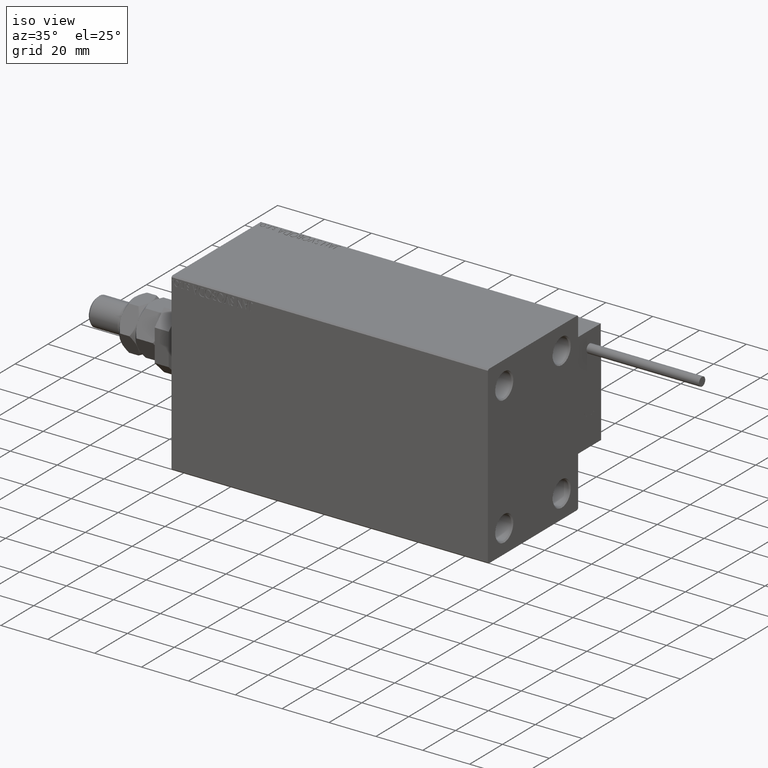
[diagram: clean part render]
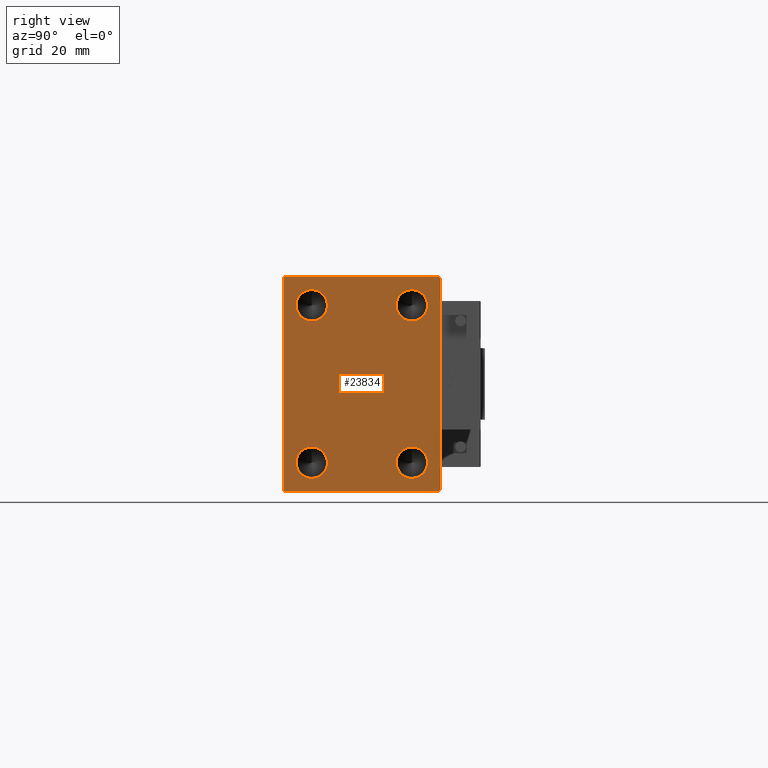
[diagram: tour spotlight — one face highlighted and labeled with its STEP entity id]
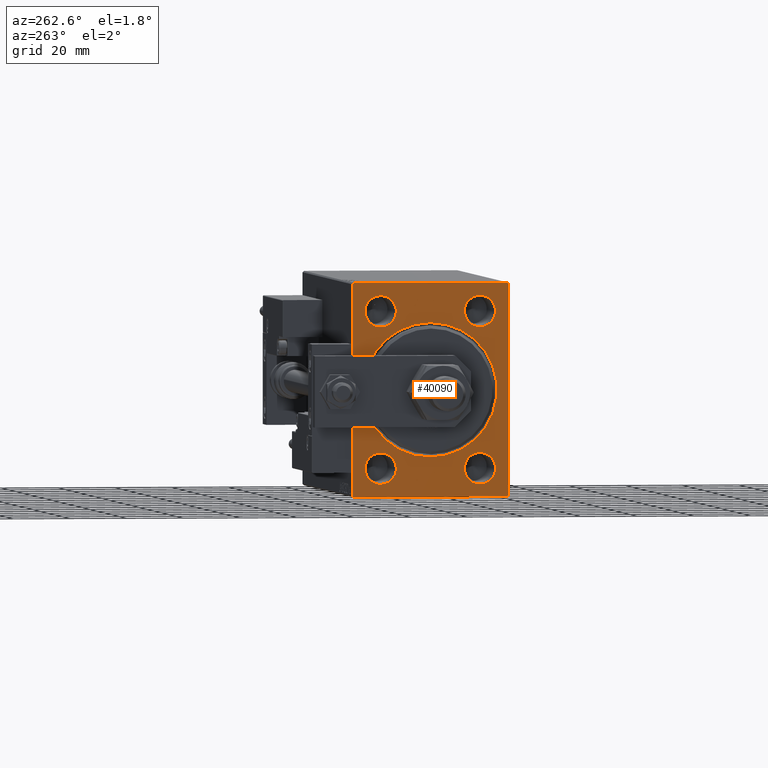
[diagram: tour spotlight — one face highlighted and labeled with its STEP entity id]
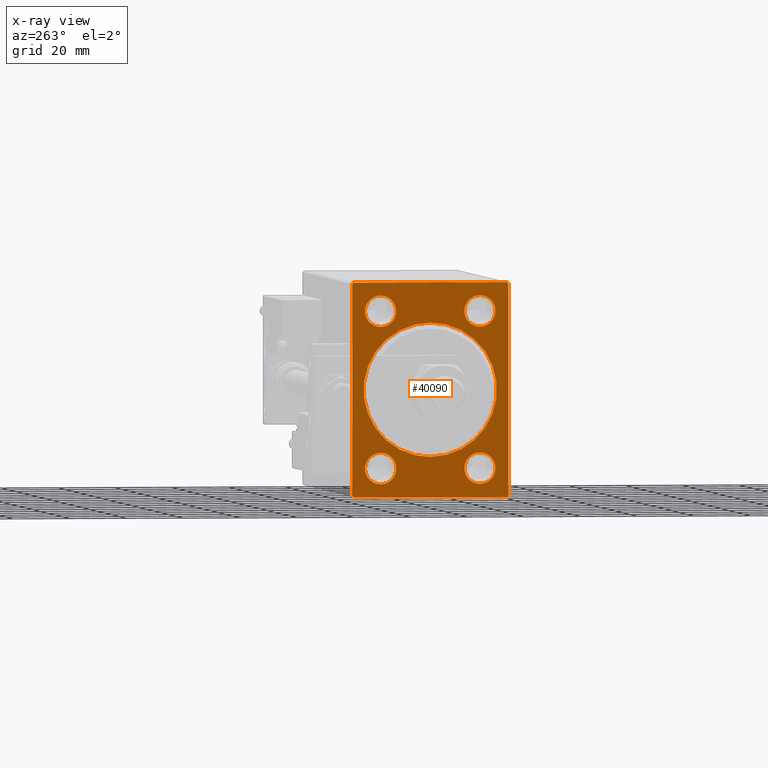
[diagram: x-ray of the same camera — body ghosted, this tour face saturated]
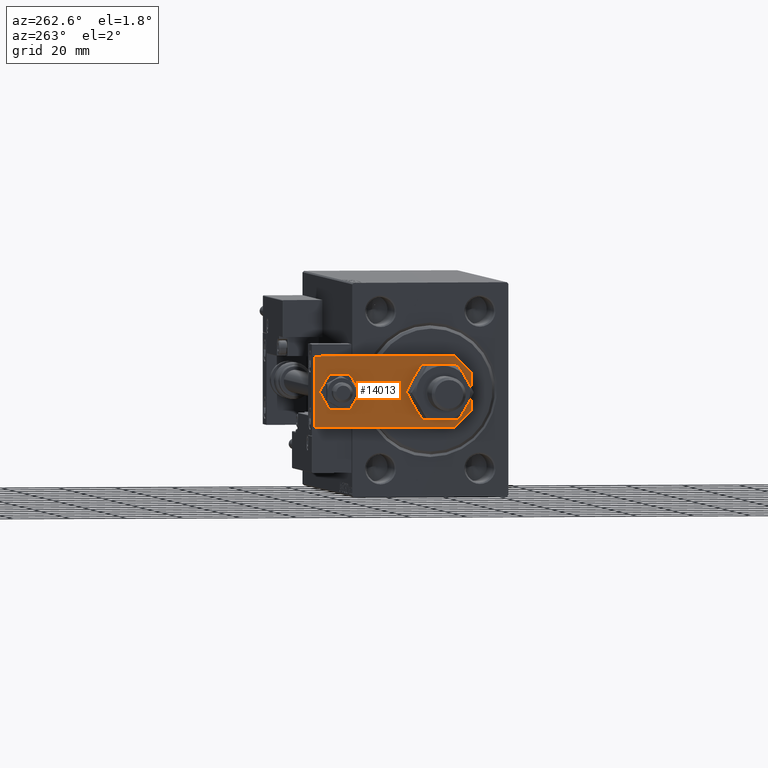
[diagram: tour spotlight — one face highlighted and labeled with its STEP entity id]
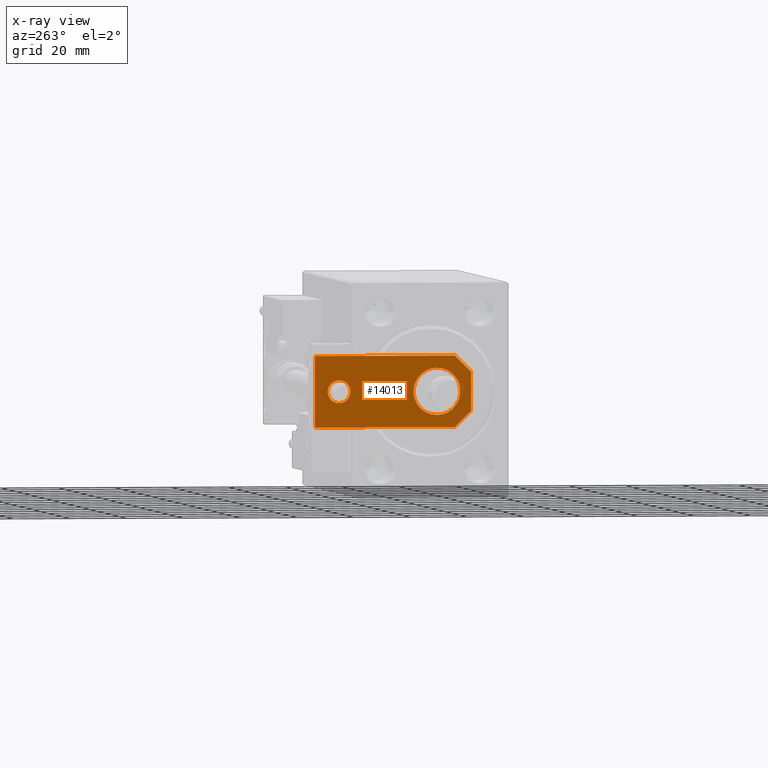
[diagram: x-ray of the same camera — body ghosted, this tour face saturated]
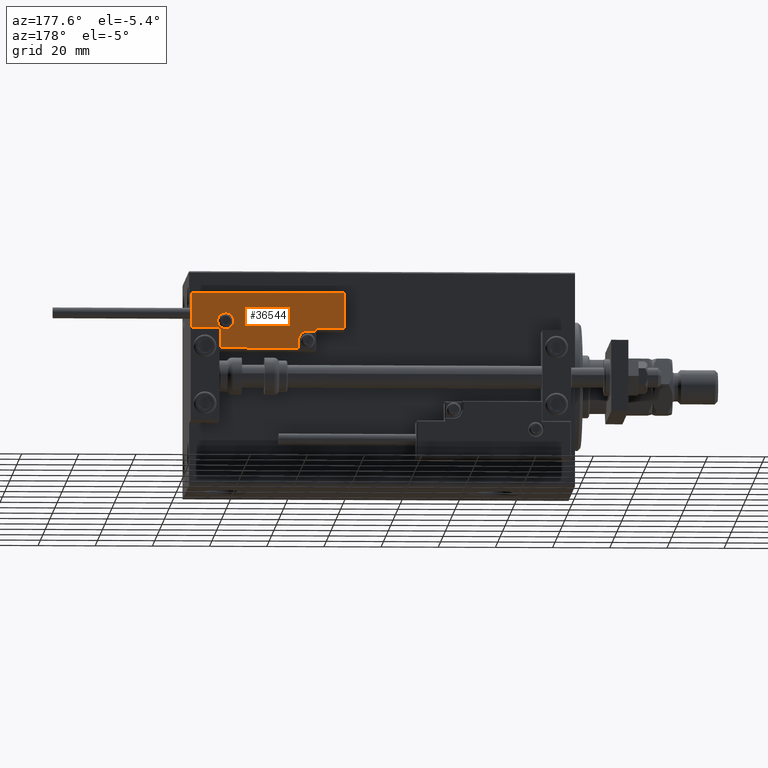
[diagram: tour spotlight — one face highlighted and labeled with its STEP entity id]
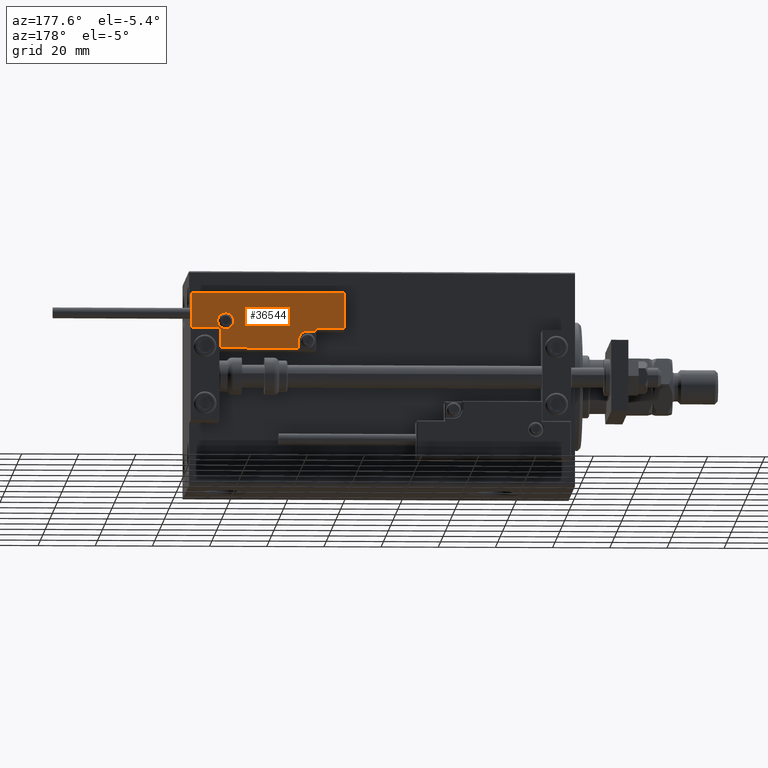
[diagram: tour spotlight — one face highlighted and labeled with its STEP entity id]
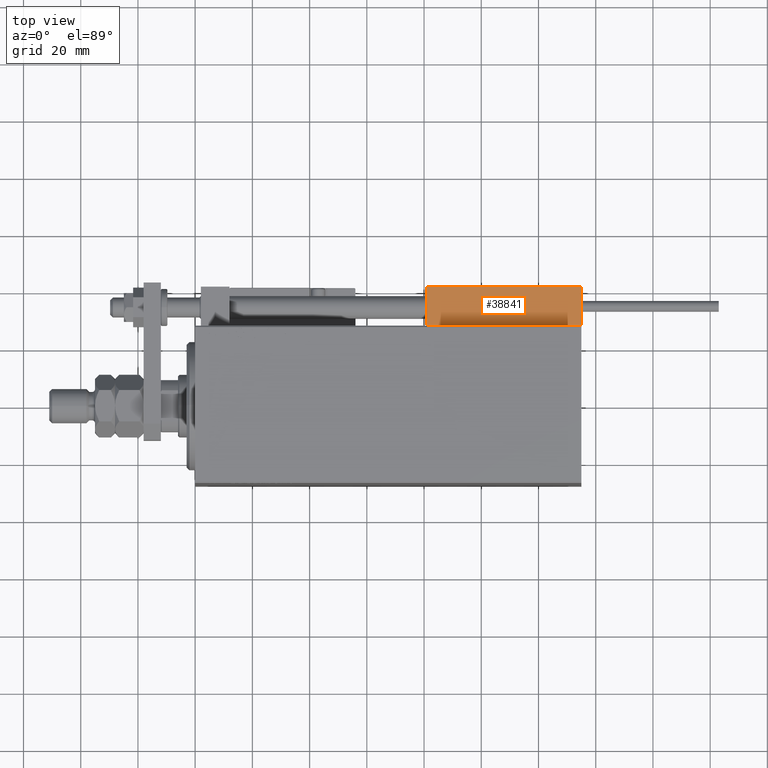
[diagram: tour spotlight — one face highlighted and labeled with its STEP entity id]
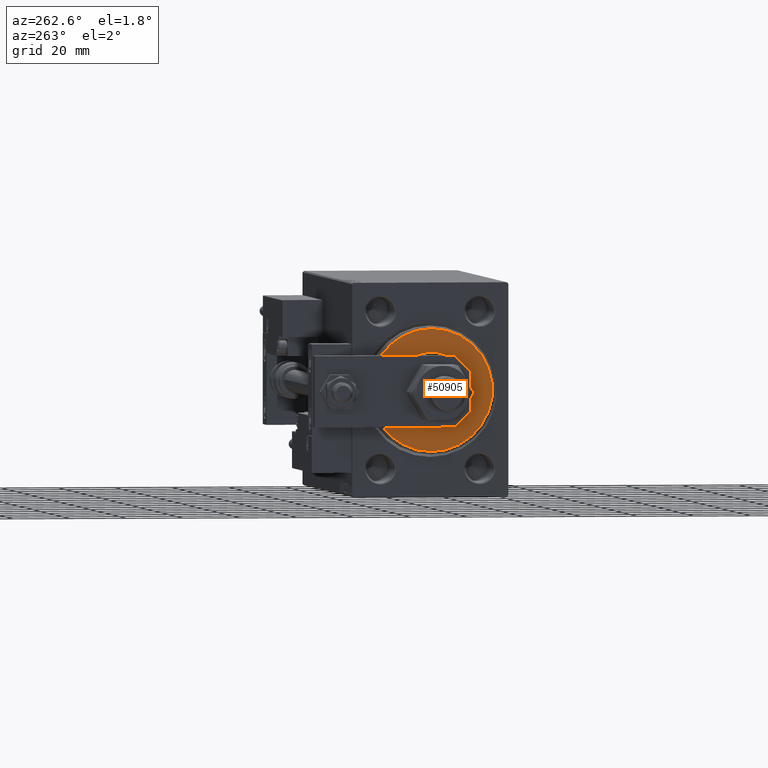
[diagram: tour spotlight — one face highlighted and labeled with its STEP entity id]
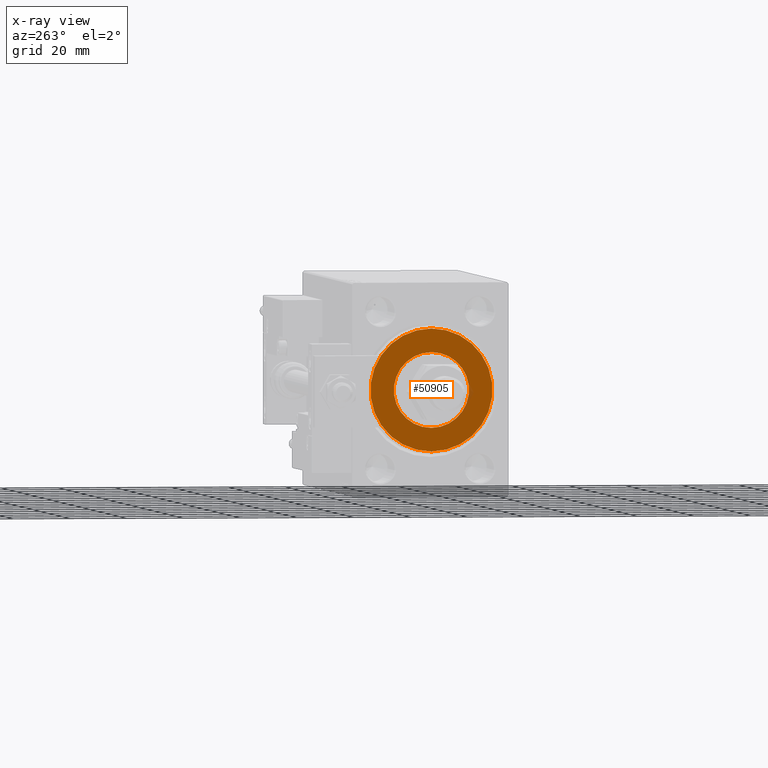
[diagram: x-ray of the same camera — body ghosted, this tour face saturated]
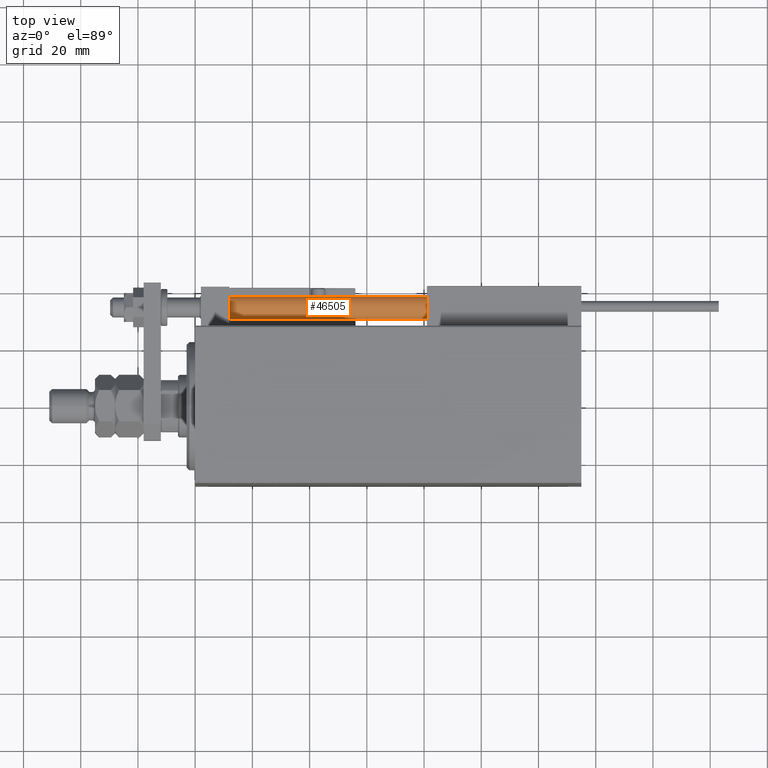
[diagram: tour spotlight — one face highlighted and labeled with its STEP entity id]
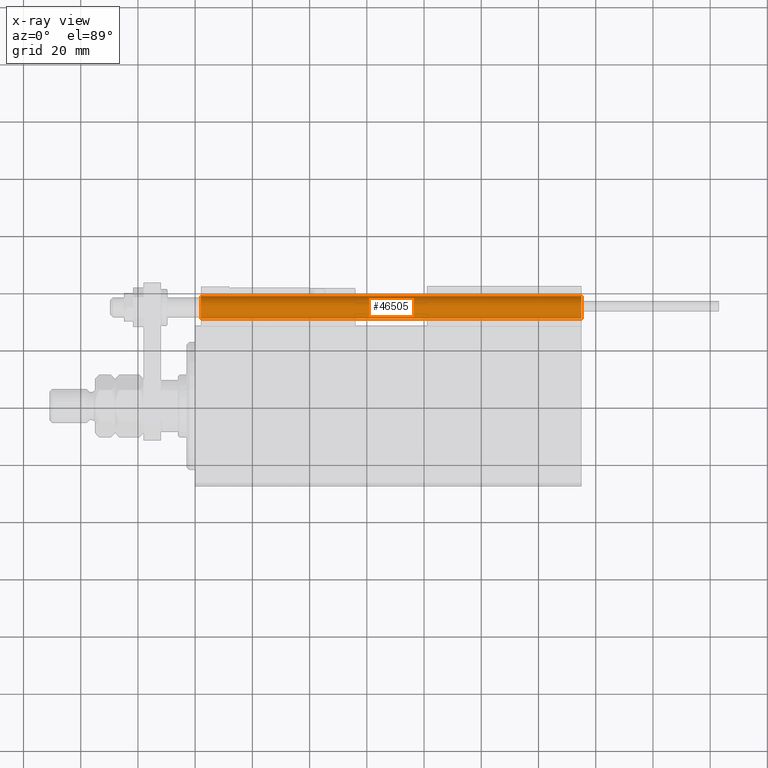
[diagram: x-ray of the same camera — body ghosted, this tour face saturated]
A machine part: a face-by-face anatomy tour. The part has 1367 B-rep faces; the first image is the clean iso view, then the 8 largest visible faces are spotlighted one at a time (largest first), each with its STEP entity span.

Face 1 — right view, entity #23834. In plain terms, the highlighted planar face has unit normal (1, 0, 0).
Definition (entity closure, byte-faithful):
#290 = AXIS2_PLACEMENT_3D ( 'NONE', #5877, #14695, #18693 ) ;
#1071 = DIRECTION ( 'NONE',  ( 0.000000000000000000, 0.000000000000000000, -1.000000000000000000 ) ) ;
#1211 = CIRCLE ( 'NONE', #18262, 5.499999999999987566 ) ;
#1534 = ORIENTED_EDGE ( 'NONE', *, *, #52417, .F. ) ;
#1549 = EDGE_LOOP ( 'NONE', ( #20344, #48658, #13648, #25866, #51903, #30510, #28487, #9556 ) ) ;
#1587 = VERTEX_POINT ( 'NONE', #52895 ) ;
#1708 = AXIS2_PLACEMENT_3D ( 'NONE', #32312, #36597, #48390 ) ;
#1820 = VECTOR ( 'NONE', #10772, 1000.000000000000000 ) ;
#2354 = DIRECTION ( 'NONE',  ( 1.000000000000000000, -0.000000000000000000, -0.000000000000000000 ) ) ;
#2358 = LINE ( 'NONE', #14138, #16110 ) ;
#3247 = DIRECTION ( 'NONE',  ( 0.000000000000000000, 0.000000000000000000, -1.000000000000000000 ) ) ;
#3467 = EDGE_LOOP ( 'NONE', ( #9893, #34681 ) ) ;
#3587 = DIRECTION ( 'NONE',  ( 0.000000000000000000, 0.000000000000000000, -1.000000000000000000 ) ) ;
#4337 = VERTEX_POINT ( 'NONE', #32120 ) ;
#4402 = VERTEX_POINT ( 'NONE', #19801 ) ;
#4547 = CARTESIAN_POINT ( 'NONE',  ( 135.0000000000000000, 17.50000000000000000, -22.00000000000001776 ) ) ;
#4567 = EDGE_CURVE ( 'NONE', #44428, #37430, #20119, .T. ) ;
#4764 = VECTOR ( 'NONE', #11831, 1000.000000000000114 ) ;
#5014 = LINE ( 'NONE', #41395, #43802 ) ;
#5586 = AXIS2_PLACEMENT_3D ( 'NONE', #38994, #2354, #34985 ) ;
#5877 = CARTESIAN_POINT ( 'NONE',  ( 135.0000000000000000, 17.50000000000000000, -27.49999999999999645 ) ) ;
#7588 = CARTESIAN_POINT ( 'NONE',  ( 135.0000000000000000, -17.50000000000000000, -22.00000000000001776 ) ) ;
#7710 = CIRCLE ( 'NONE', #1708, 5.499999999999991118 ) ;
#8175 = DIRECTION ( 'NONE',  ( 0.000000000000000000, 0.000000000000000000, -1.000000000000000000 ) ) ;
#8440 = CARTESIAN_POINT ( 'NONE',  ( 135.0000000000000000, -17.50000000000000000, 27.50000000000000000 ) ) ;
#8848 = DIRECTION ( 'NONE',  ( 1.000000000000000000, -0.000000000000000000, -0.000000000000000000 ) ) ;
#9556 = ORIENTED_EDGE ( 'NONE', *, *, #46707, .T. ) ;
#9644 = CARTESIAN_POINT ( 'NONE',  ( 135.0000000000000000, 27.50000000000000355, -37.50000000000000000 ) ) ;
#9893 = ORIENTED_EDGE ( 'NONE', *, *, #4567, .F. ) ;
#9946 = EDGE_CURVE ( 'NONE', #45414, #15692, #18817, .T. ) ;
#10772 = DIRECTION ( 'NONE',  ( 0.000000000000000000, 0.000000000000000000, -1.000000000000000000 ) ) ;
#11219 = ORIENTED_EDGE ( 'NONE', *, *, #31271, .F. ) ;
#11741 = EDGE_CURVE ( 'NONE', #20858, #34453, #22103, .T. ) ;
#11831 = DIRECTION ( 'NONE',  ( -0.000000000000000000, 0.7071067811865474617, 0.7071067811865474617 ) ) ;
#11907 = VERTEX_POINT ( 'NONE', #37806 ) ;
#13080 = CARTESIAN_POINT ( 'NONE',  ( 135.0000000000000000, 17.50000000000000000, 27.50000000000000000 ) ) ;
#13393 = CARTESIAN_POINT ( 'NONE',  ( 135.0000000000000000, 17.50000000000000000, 27.50000000000000000 ) ) ;
#13462 = CARTESIAN_POINT ( 'NONE',  ( 135.0000000000000000, 32.25000000000000711, 32.25000000000000711 ) ) ;
#13648 = ORIENTED_EDGE ( 'NONE', *, *, #27452, .T. ) ;
#13737 = VECTOR ( 'NONE', #29014, 999.9999999999998863 ) ;
#14138 = CARTESIAN_POINT ( 'NONE',  ( 135.0000000000000000, 27.49999999999999645, 37.50000000000000000 ) ) ;
#14193 = LINE ( 'NONE', #9644, #32654 ) ;
#14695 = DIRECTION ( 'NONE',  ( 1.000000000000000000, -0.000000000000000000, -0.000000000000000000 ) ) ;
#14758 = CARTESIAN_POINT ( 'NONE',  ( 135.0000000000000000, -27.00000000000002487, 37.49999999999998579 ) ) ;
#14953 = ORIENTED_EDGE ( 'NONE', *, *, #18177, .F. ) ;
#15323 = LINE ( 'NONE', #31629, #4764 ) ;
#15692 = VERTEX_POINT ( 'NONE', #41244 ) ;
#16110 = VECTOR ( 'NONE', #18665, 1000.000000000000000 ) ;
#16215 = VERTEX_POINT ( 'NONE', #37970 ) ;
#17847 = ORIENTED_EDGE ( 'NONE', *, *, #32916, .F. ) ;
#18177 = EDGE_CURVE ( 'NONE', #37568, #4337, #21265, .T. ) ;
#18262 = AXIS2_PLACEMENT_3D ( 'NONE', #13393, #8848, #1071 ) ;
#18640 = EDGE_CURVE ( 'NONE', #35838, #32618, #2358, .T. ) ;
#18665 = DIRECTION ( 'NONE',  ( 0.000000000000000000, -1.000000000000000000, -2.523234146875355998E-16 ) ) ;
#18693 = DIRECTION ( 'NONE',  ( 0.000000000000000000, 0.000000000000000000, -1.000000000000000000 ) ) ;
#18817 = LINE ( 'NONE', #42387, #19431 ) ;
#19431 = VECTOR ( 'NONE', #46166, 1000.000000000000000 ) ;
#19801 = CARTESIAN_POINT ( 'NONE',  ( 135.0000000000000000, 27.50000000000000355, -37.00000000000001421 ) ) ;
#20089 = DIRECTION ( 'NONE',  ( 0.000000000000000000, 0.000000000000000000, -1.000000000000000000 ) ) ;
#20119 = CIRCLE ( 'NONE', #5586, 5.499999999999991118 ) ;
#20344 = ORIENTED_EDGE ( 'NONE', *, *, #18640, .T. ) ;
#20858 = VERTEX_POINT ( 'NONE', #4547 ) ;
#20993 = DIRECTION ( 'NONE',  ( 1.000000000000000000, -0.000000000000000000, -0.000000000000000000 ) ) ;
#21236 = EDGE_CURVE ( 'NONE', #37430, #44428, #7710, .T. ) ;
#21265 = CIRCLE ( 'NONE', #40054, 5.499999999999987566 ) ;
#21294 = CARTESIAN_POINT ( 'NONE',  ( 135.0000000000000000, 17.50000000000000000, -32.99999999999997158 ) ) ;
#22103 = CIRCLE ( 'NONE', #46874, 5.499999999999991118 ) ;
#22843 = CARTESIAN_POINT ( 'NONE',  ( 135.0000000000000000, -26.99999999999996803, -37.50000000000000000 ) ) ;
#23325 = CARTESIAN_POINT ( 'NONE',  ( 135.0000000000000000, -27.49999999999999645, 37.49999999999998579 ) ) ;
#23565 = FACE_BOUND ( 'NONE', #37028, .T. ) ;
#23834 = ADVANCED_FACE ( 'NONE', ( #40409, #52204, #27567, #23565, #31858 ), #28095, .T. ) ;
#24048 = CARTESIAN_POINT ( 'NONE',  ( 135.0000000000000000, -17.50000000000000000, -32.99999999999997158 ) ) ;
#25565 = CARTESIAN_POINT ( 'NONE',  ( 135.0000000000000000, -27.49999999999999645, 37.00000000000001421 ) ) ;
#25866 = ORIENTED_EDGE ( 'NONE', *, *, #26788, .T. ) ;
#26086 = AXIS2_PLACEMENT_3D ( 'NONE', #13080, #33404, #20089 ) ;
#26788 = EDGE_CURVE ( 'NONE', #11907, #45414, #33296, .T. ) ;
#26978 = CARTESIAN_POINT ( 'NONE',  ( 135.0000000000000000, -17.50000000000000000, 27.50000000000000000 ) ) ;
#27133 = EDGE_LOOP ( 'NONE', ( #14953, #11219 ) ) ;
#27452 = EDGE_CURVE ( 'NONE', #36554, #11907, #47437, .T. ) ;
#27567 = FACE_BOUND ( 'NONE', #3467, .T. ) ;
#28095 = PLANE ( 'NONE',  #47098 ) ;
#28487 = ORIENTED_EDGE ( 'NONE', *, *, #49550, .T. ) ;
#29014 = DIRECTION ( 'NONE',  ( -0.000000000000000000, 0.7071067811865574537, -0.7071067811865376918 ) ) ;
#29349 = ORIENTED_EDGE ( 'NONE', *, *, #11741, .F. ) ;
#30028 = DIRECTION ( 'NONE',  ( -0.000000000000000000, -0.7071067811865474617, 0.7071067811865474617 ) ) ;
#30476 = DIRECTION ( 'NONE',  ( 0.000000000000000000, 0.000000000000000000, -1.000000000000000000 ) ) ;
#30510 = ORIENTED_EDGE ( 'NONE', *, *, #37878, .T. ) ;
#30765 = DIRECTION ( 'NONE',  ( 0.000000000000000000, -9.251858538542971581E-17, 1.000000000000000000 ) ) ;
#30950 = CARTESIAN_POINT ( 'NONE',  ( 135.0000000000000000, 17.50000000000000000, -27.49999999999999645 ) ) ;
#31271 = EDGE_CURVE ( 'NONE', #4337, #37568, #40416, .T. ) ;
#31629 = CARTESIAN_POINT ( 'NONE',  ( 135.0000000000000000, 32.25000000000000711, -32.25000000000000711 ) ) ;
#31858 = FACE_OUTER_BOUND ( 'NONE', #1549, .T. ) ;
#32120 = CARTESIAN_POINT ( 'NONE',  ( 135.0000000000000000, -17.50000000000000000, 22.00000000000002132 ) ) ;
#32312 = CARTESIAN_POINT ( 'NONE',  ( 135.0000000000000000, -17.50000000000000000, -27.49999999999999645 ) ) ;
#32618 = VERTEX_POINT ( 'NONE', #14758 ) ;
#32654 = VECTOR ( 'NONE', #30765, 1000.000000000000000 ) ;
#32916 = EDGE_CURVE ( 'NONE', #1587, #48753, #1211, .T. ) ;
#33036 = CARTESIAN_POINT ( 'NONE',  ( 135.0000000000000000, -32.24999999999960920, -32.25000000000050449 ) ) ;
#33296 = LINE ( 'NONE', #33036, #13737 ) ;
#33404 = DIRECTION ( 'NONE',  ( 1.000000000000000000, -0.000000000000000000, -0.000000000000000000 ) ) ;
#34453 = VERTEX_POINT ( 'NONE', #21294 ) ;
#34681 = ORIENTED_EDGE ( 'NONE', *, *, #21236, .F. ) ;
#34985 = DIRECTION ( 'NONE',  ( 0.000000000000000000, 0.000000000000000000, -1.000000000000000000 ) ) ;
#35838 = VERTEX_POINT ( 'NONE', #38389 ) ;
#36145 = DIRECTION ( 'NONE',  ( 1.000000000000000000, 0.000000000000000000, 0.000000000000000000 ) ) ;
#36244 = EDGE_CURVE ( 'NONE', #48753, #1587, #48318, .T. ) ;
#36554 = VERTEX_POINT ( 'NONE', #25565 ) ;
#36597 = DIRECTION ( 'NONE',  ( 1.000000000000000000, -0.000000000000000000, -0.000000000000000000 ) ) ;
#37028 = EDGE_LOOP ( 'NONE', ( #29349, #1534 ) ) ;
#37430 = VERTEX_POINT ( 'NONE', #24048 ) ;
#37568 = VERTEX_POINT ( 'NONE', #48037 ) ;
#37806 = CARTESIAN_POINT ( 'NONE',  ( 135.0000000000000000, -27.49999999999999645, -36.99999999999998579 ) ) ;
#37878 = EDGE_CURVE ( 'NONE', #15692, #4402, #15323, .T. ) ;
#37970 = CARTESIAN_POINT ( 'NONE',  ( 135.0000000000000000, 27.49999999999999645, 37.00000000000002842 ) ) ;
#38389 = CARTESIAN_POINT ( 'NONE',  ( 135.0000000000000000, 27.00000000000002487, 37.50000000000000000 ) ) ;
#38994 = CARTESIAN_POINT ( 'NONE',  ( 135.0000000000000000, -17.50000000000000000, -27.49999999999999645 ) ) ;
#39493 = EDGE_LOOP ( 'NONE', ( #17847, #44391 ) ) ;
#39782 = CARTESIAN_POINT ( 'NONE',  ( 135.0000000000000000, 17.50000000000000000, 22.00000000000002132 ) ) ;
#40054 = AXIS2_PLACEMENT_3D ( 'NONE', #26978, #47606, #30476 ) ;
#40409 = FACE_BOUND ( 'NONE', #39493, .T. ) ;
#40416 = CIRCLE ( 'NONE', #41267, 5.499999999999987566 ) ;
#40466 = CIRCLE ( 'NONE', #290, 5.499999999999991118 ) ;
#41089 = VECTOR ( 'NONE', #30028, 1000.000000000000114 ) ;
#41244 = CARTESIAN_POINT ( 'NONE',  ( 135.0000000000000000, 27.00000000000001776, -37.50000000000000000 ) ) ;
#41267 = AXIS2_PLACEMENT_3D ( 'NONE', #8440, #20993, #8175 ) ;
#41395 = CARTESIAN_POINT ( 'NONE',  ( 135.0000000000000000, -32.25000000000000711, 32.25000000000000711 ) ) ;
#42387 = CARTESIAN_POINT ( 'NONE',  ( 135.0000000000000000, -27.49999999999999645, -37.50000000000000000 ) ) ;
#43802 = VECTOR ( 'NONE', #49448, 1000.000000000000114 ) ;
#43983 = DIRECTION ( 'NONE',  ( 1.000000000000000000, -0.000000000000000000, -0.000000000000000000 ) ) ;
#44391 = ORIENTED_EDGE ( 'NONE', *, *, #36244, .F. ) ;
#44428 = VERTEX_POINT ( 'NONE', #7588 ) ;
#45414 = VERTEX_POINT ( 'NONE', #22843 ) ;
#46166 = DIRECTION ( 'NONE',  ( 0.000000000000000000, 1.000000000000000000, 0.000000000000000000 ) ) ;
#46707 = EDGE_CURVE ( 'NONE', #16215, #35838, #50121, .T. ) ;
#46874 = AXIS2_PLACEMENT_3D ( 'NONE', #30950, #43983, #3587 ) ;
#47098 = AXIS2_PLACEMENT_3D ( 'NONE', #52467, #36145, #3247 ) ;
#47437 = LINE ( 'NONE', #23325, #1820 ) ;
#47606 = DIRECTION ( 'NONE',  ( 1.000000000000000000, -0.000000000000000000, -0.000000000000000000 ) ) ;
#48037 = CARTESIAN_POINT ( 'NONE',  ( 135.0000000000000000, -17.50000000000000000, 32.99999999999998579 ) ) ;
#48318 = CIRCLE ( 'NONE', #26086, 5.499999999999987566 ) ;
#48390 = DIRECTION ( 'NONE',  ( 0.000000000000000000, 0.000000000000000000, -1.000000000000000000 ) ) ;
#48658 = ORIENTED_EDGE ( 'NONE', *, *, #50541, .T. ) ;
#48753 = VERTEX_POINT ( 'NONE', #39782 ) ;
#49448 = DIRECTION ( 'NONE',  ( 0.000000000000000000, -0.7071067811865474617, -0.7071067811865474617 ) ) ;
#49550 = EDGE_CURVE ( 'NONE', #4402, #16215, #14193, .T. ) ;
#50121 = LINE ( 'NONE', #13462, #41089 ) ;
#50541 = EDGE_CURVE ( 'NONE', #32618, #36554, #5014, .T. ) ;
#51903 = ORIENTED_EDGE ( 'NONE', *, *, #9946, .T. ) ;
#52204 = FACE_BOUND ( 'NONE', #27133, .T. ) ;
#52417 = EDGE_CURVE ( 'NONE', #34453, #20858, #40466, .T. ) ;
#52467 = CARTESIAN_POINT ( 'NONE',  ( 135.0000000000000000, 0.000000000000000000, 0.000000000000000000 ) ) ;
#52895 = CARTESIAN_POINT ( 'NONE',  ( 135.0000000000000000, 17.50000000000000000, 32.99999999999998579 ) ) ;

Face 2 — auxiliary view, entity #40090. An x-ray twin of the same camera follows (body ghosted, this face saturated) — the face is partly hidden behind the body. In plain terms, the highlighted planar face has unit normal (1, 0, 0).
Definition (entity closure, byte-faithful):
#328 = CARTESIAN_POINT ( 'NONE',  ( 0.000000000000000000, -27.49999999999999645, 37.00000000000001421 ) ) ;
#1565 = DIRECTION ( 'NONE',  ( 0.000000000000000000, 0.000000000000000000, -1.000000000000000000 ) ) ;
#1827 = CARTESIAN_POINT ( 'NONE',  ( 0.000000000000000000, -17.50000000000000000, 22.00000000000001066 ) ) ;
#1913 = CARTESIAN_POINT ( 'NONE',  ( 0.000000000000000000, 17.50000000000000000, -27.49999999999999645 ) ) ;
#1948 = CARTESIAN_POINT ( 'NONE',  ( 0.000000000000000000, 27.50000000000000355, -37.00000000000001421 ) ) ;
#1955 = LINE ( 'NONE', #30055, #32409 ) ;
#3037 = CARTESIAN_POINT ( 'NONE',  ( 0.000000000000000000, -17.50000000000000000, -27.49999999999999645 ) ) ;
#3300 = DIRECTION ( 'NONE',  ( 0.000000000000000000, 0.000000000000000000, -1.000000000000000000 ) ) ;
#3843 = PLANE ( 'NONE',  #33314 ) ;
#3909 = VECTOR ( 'NONE', #50522, 999.9999999999998863 ) ;
#4044 = VERTEX_POINT ( 'NONE', #328 ) ;
#4514 = DIRECTION ( 'NONE',  ( 0.000000000000000000, 0.000000000000000000, -1.000000000000000000 ) ) ;
#4516 = VERTEX_POINT ( 'NONE', #23458 ) ;
#4616 = EDGE_CURVE ( 'NONE', #52812, #43322, #13350, .T. ) ;
#4901 = FACE_BOUND ( 'NONE', #18866, .T. ) ;
#7533 = ORIENTED_EDGE ( 'NONE', *, *, #21108, .T. ) ;
#7556 = VERTEX_POINT ( 'NONE', #11376 ) ;
#7863 = FACE_BOUND ( 'NONE', #25160, .T. ) ;
#8267 = ORIENTED_EDGE ( 'NONE', *, *, #12916, .F. ) ;
#8270 = ORIENTED_EDGE ( 'NONE', *, *, #19281, .F. ) ;
#8341 = EDGE_CURVE ( 'NONE', #18589, #24665, #36528, .T. ) ;
#8472 = CARTESIAN_POINT ( 'NONE',  ( 0.000000000000000000, 17.50000000000000000, 22.00000000000001066 ) ) ;
#8829 = EDGE_CURVE ( 'NONE', #7556, #36268, #9181, .T. ) ;
#9095 = CARTESIAN_POINT ( 'NONE',  ( 0.000000000000000000, 27.49999999999999645, 37.00000000000002842 ) ) ;
#9181 = CIRCLE ( 'NONE', #11728, 5.499999999999991118 ) ;
#9323 = CARTESIAN_POINT ( 'NONE',  ( 0.000000000000000000, 27.00000000000002487, 37.50000000000000000 ) ) ;
#9504 = AXIS2_PLACEMENT_3D ( 'NONE', #24319, #44670, #28064 ) ;
#9577 = DIRECTION ( 'NONE',  ( 1.000000000000000000, 0.000000000000000000, 0.000000000000000000 ) ) ;
#9583 = ORIENTED_EDGE ( 'NONE', *, *, #24597, .T. ) ;
#9818 = CARTESIAN_POINT ( 'NONE',  ( 0.000000000000000000, 27.50000000000000355, -37.00000000000001421 ) ) ;
#9948 = DIRECTION ( 'NONE',  ( 1.000000000000000000, 0.000000000000000000, 0.000000000000000000 ) ) ;
#9980 = DIRECTION ( 'NONE',  ( 0.000000000000000000, -1.000000000000000000, -2.523234146875355998E-16 ) ) ;
#10204 = DIRECTION ( 'NONE',  ( 0.000000000000000000, 0.000000000000000000, -1.000000000000000000 ) ) ;
#10538 = VERTEX_POINT ( 'NONE', #9818 ) ;
#11086 = EDGE_CURVE ( 'NONE', #4516, #33417, #44265, .T. ) ;
#11376 = CARTESIAN_POINT ( 'NONE',  ( 0.000000000000000000, -17.50000000000000000, -32.99999999999998579 ) ) ;
#11728 = AXIS2_PLACEMENT_3D ( 'NONE', #3037, #20129, #3300 ) ;
#11809 = CARTESIAN_POINT ( 'NONE',  ( 0.000000000000000000, 0.000000000000000000, 0.000000000000000000 ) ) ;
#12097 = CIRCLE ( 'NONE', #9504, 5.499999999999987566 ) ;
#12253 = AXIS2_PLACEMENT_3D ( 'NONE', #1913, #47863, #18224 ) ;
#12916 = EDGE_CURVE ( 'NONE', #4044, #43322, #44986, .T. ) ;
#12915 = VECTOR ( 'NONE', #49115, 1000.000000000000000 ) ;
#13350 = LINE ( 'NONE', #41966, #3909 ) ;
#13388 = EDGE_CURVE ( 'NONE', #35434, #16037, #52191, .T. ) ;
#13655 = EDGE_CURVE ( 'NONE', #36268, #7556, #29116, .T. ) ;
#14873 = CARTESIAN_POINT ( 'NONE',  ( 0.000000000000000000, -17.50000000000000000, 27.50000000000000000 ) ) ;
#14883 = DIRECTION ( 'NONE',  ( 0.000000000000000000, 1.000000000000000000, 0.000000000000000000 ) ) ;
#15266 = CARTESIAN_POINT ( 'NONE',  ( 0.000000000000000000, 2.877919977996280715E-15, -23.50000000000000355 ) ) ;
#16037 = VERTEX_POINT ( 'NONE', #15266 ) ;
#16143 = DIRECTION ( 'NONE',  ( 1.000000000000000000, 0.000000000000000000, 0.000000000000000000 ) ) ;
#16273 = VECTOR ( 'NONE', #51901, 1000.000000000000114 ) ;
#16450 = LINE ( 'NONE', #32772, #12915 ) ;
#16551 = DIRECTION ( 'NONE',  ( 1.000000000000000000, 0.000000000000000000, 0.000000000000000000 ) ) ;
#17993 = AXIS2_PLACEMENT_3D ( 'NONE', #21876, #9577, #37424 ) ;
#18121 = ORIENTED_EDGE ( 'NONE', *, *, #13655, .T. ) ;
#18224 = DIRECTION ( 'NONE',  ( 0.000000000000000000, 0.000000000000000000, -1.000000000000000000 ) ) ;
#18409 = DIRECTION ( 'NONE',  ( 1.000000000000000000, 0.000000000000000000, 0.000000000000000000 ) ) ;
#18589 = VERTEX_POINT ( 'NONE', #1827 ) ;
#18639 = CARTESIAN_POINT ( 'NONE',  ( 0.000000000000000000, -26.99999999999996803, -37.50000000000000000 ) ) ;
#18866 = EDGE_LOOP ( 'NONE', ( #24210, #38650 ) ) ;
#19281 = EDGE_CURVE ( 'NONE', #36339, #52412, #1955, .T. ) ;
#19415 = CARTESIAN_POINT ( 'NONE',  ( 0.000000000000000000, -27.49999999999999645, -37.50000000000000000 ) ) ;
#20022 = EDGE_LOOP ( 'NONE', ( #51902, #33200 ) ) ;
#20028 = CARTESIAN_POINT ( 'NONE',  ( 0.000000000000000000, 27.00000000000002487, 37.50000000000000000 ) ) ;
#20065 = VERTEX_POINT ( 'NONE', #9095 ) ;
#20129 = DIRECTION ( 'NONE',  ( 1.000000000000000000, 0.000000000000000000, 0.000000000000000000 ) ) ;
#20615 = CARTESIAN_POINT ( 'NONE',  ( 0.000000000000000000, -27.49999999999999645, 37.49999999999998579 ) ) ;
#21108 = EDGE_CURVE ( 'NONE', #4044, #52412, #31781, .T. ) ;
#21205 = FACE_BOUND ( 'NONE', #36097, .T. ) ;
#21421 = CARTESIAN_POINT ( 'NONE',  ( 0.000000000000000000, -27.49999999999999645, -36.99999999999998579 ) ) ;
#21876 = CARTESIAN_POINT ( 'NONE',  ( 0.000000000000000000, 0.000000000000000000, 0.000000000000000000 ) ) ;
#22322 = ORIENTED_EDGE ( 'NONE', *, *, #27312, .T. ) ;
#23316 = CARTESIAN_POINT ( 'NONE',  ( 0.000000000000000000, -17.50000000000000000, -27.49999999999999645 ) ) ;
#23458 = CARTESIAN_POINT ( 'NONE',  ( 0.000000000000000000, 17.50000000000000000, -22.00000000000000711 ) ) ;
#24210 = ORIENTED_EDGE ( 'NONE', *, *, #13388, .T. ) ;
#24319 = CARTESIAN_POINT ( 'NONE',  ( 0.000000000000000000, 17.50000000000000000, 27.50000000000000000 ) ) ;
#24565 = CARTESIAN_POINT ( 'NONE',  ( 0.000000000000000000, -17.50000000000000000, 27.50000000000000000 ) ) ;
#24597 = EDGE_CURVE ( 'NONE', #24665, #18589, #43684, .T. ) ;
#24665 = VERTEX_POINT ( 'NONE', #45458 ) ;
#24743 = ORIENTED_EDGE ( 'NONE', *, *, #8829, .T. ) ;
#24836 = ORIENTED_EDGE ( 'NONE', *, *, #38788, .F. ) ;
#24966 = VERTEX_POINT ( 'NONE', #8472 ) ;
#25160 = EDGE_LOOP ( 'NONE', ( #18121, #24743 ) ) ;
#25614 = VECTOR ( 'NONE', #31516, 1000.000000000000114 ) ;
#25684 = AXIS2_PLACEMENT_3D ( 'NONE', #11809, #28106, #31870 ) ;
#26366 = DIRECTION ( 'NONE',  ( 1.000000000000000000, 0.000000000000000000, 0.000000000000000000 ) ) ;
#26889 = EDGE_CURVE ( 'NONE', #10538, #20065, #16450, .T. ) ;
#26952 = CARTESIAN_POINT ( 'NONE',  ( 0.000000000000000000, 17.50000000000000000, 27.50000000000000000 ) ) ;
#27003 = ORIENTED_EDGE ( 'NONE', *, *, #11086, .T. ) ;
#27312 = EDGE_CURVE ( 'NONE', #10538, #46815, #38337, .T. ) ;
#27812 = EDGE_CURVE ( 'NONE', #41861, #24966, #12097, .T. ) ;
#28064 = DIRECTION ( 'NONE',  ( 0.000000000000000000, 0.000000000000000000, -1.000000000000000000 ) ) ;
#28106 = DIRECTION ( 'NONE',  ( 1.000000000000000000, 0.000000000000000000, 0.000000000000000000 ) ) ;
#28438 = CARTESIAN_POINT ( 'NONE',  ( 0.000000000000000000, 0.000000000000000000, 0.000000000000000000 ) ) ;
#28838 = ORIENTED_EDGE ( 'NONE', *, *, #8341, .T. ) ;
#29116 = CIRCLE ( 'NONE', #41959, 5.499999999999991118 ) ;
#30055 = CARTESIAN_POINT ( 'NONE',  ( 0.000000000000000000, 27.49999999999999645, 37.50000000000000000 ) ) ;
#30738 = CARTESIAN_POINT ( 'NONE',  ( 0.000000000000000000, -27.00000000000002487, 37.49999999999998579 ) ) ;
#30877 = VECTOR ( 'NONE', #46654, 1000.000000000000114 ) ;
#31282 = ORIENTED_EDGE ( 'NONE', *, *, #26889, .F. ) ;
#31516 = DIRECTION ( 'NONE',  ( -0.000000000000000000, 0.7071067811865474617, 0.7071067811865474617 ) ) ;
#31781 = LINE ( 'NONE', #39542, #25614 ) ;
#31852 = EDGE_CURVE ( 'NONE', #33417, #4516, #35303, .T. ) ;
#31870 = DIRECTION ( 'NONE',  ( 0.000000000000000000, 0.000000000000000000, -1.000000000000000000 ) ) ;
#32409 = VECTOR ( 'NONE', #9980, 1000.000000000000000 ) ;
#32536 = ORIENTED_EDGE ( 'NONE', *, *, #42597, .T. ) ;
#32772 = CARTESIAN_POINT ( 'NONE',  ( 0.000000000000000000, 27.50000000000000355, -37.50000000000000000 ) ) ;
#32994 = FACE_BOUND ( 'NONE', #20022, .T. ) ;
#33200 = ORIENTED_EDGE ( 'NONE', *, *, #43721, .T. ) ;
#33314 = AXIS2_PLACEMENT_3D ( 'NONE', #28438, #16143, #44774 ) ;
#33417 = VERTEX_POINT ( 'NONE', #37688 ) ;
#34022 = AXIS2_PLACEMENT_3D ( 'NONE', #42851, #9948, #10204 ) ;
#34679 = DIRECTION ( 'NONE',  ( 0.000000000000000000, 0.000000000000000000, -1.000000000000000000 ) ) ;
#35303 = CIRCLE ( 'NONE', #12253, 5.499999999999991118 ) ;
#35434 = VERTEX_POINT ( 'NONE', #36002 ) ;
#35793 = ORIENTED_EDGE ( 'NONE', *, *, #31852, .T. ) ;
#36002 = CARTESIAN_POINT ( 'NONE',  ( 0.000000000000000000, 0.000000000000000000, 23.50000000000000355 ) ) ;
#36097 = EDGE_LOOP ( 'NONE', ( #9583, #28838 ) ) ;
#36162 = DIRECTION ( 'NONE',  ( 0.000000000000000000, 0.000000000000000000, -1.000000000000000000 ) ) ;
#36268 = VERTEX_POINT ( 'NONE', #37167 ) ;
#36276 = LINE ( 'NONE', #19415, #47423 ) ;
#36339 = VERTEX_POINT ( 'NONE', #9323 ) ;
#36488 = FACE_BOUND ( 'NONE', #47944, .T. ) ;
#36528 = CIRCLE ( 'NONE', #50204, 5.499999999999987566 ) ;
#37167 = CARTESIAN_POINT ( 'NONE',  ( 0.000000000000000000, -17.50000000000000000, -22.00000000000000711 ) ) ;
#37424 = DIRECTION ( 'NONE',  ( 0.000000000000000000, 0.000000000000000000, -1.000000000000000000 ) ) ;
#37553 = AXIS2_PLACEMENT_3D ( 'NONE', #26952, #18409, #1565 ) ;
#37688 = CARTESIAN_POINT ( 'NONE',  ( 0.000000000000000000, 17.50000000000000000, -32.99999999999998579 ) ) ;
#38337 = LINE ( 'NONE', #1948, #30877 ) ;
#38650 = ORIENTED_EDGE ( 'NONE', *, *, #46888, .T. ) ;
#38788 = EDGE_CURVE ( 'NONE', #52812, #46815, #36276, .T. ) ;
#39380 = DIRECTION ( 'NONE',  ( 1.000000000000000000, 0.000000000000000000, 0.000000000000000000 ) ) ;
#39542 = CARTESIAN_POINT ( 'NONE',  ( 0.000000000000000000, -27.49999999999999645, 37.00000000000001421 ) ) ;
#39639 = DIRECTION ( 'NONE',  ( 0.000000000000000000, 0.000000000000000000, -1.000000000000000000 ) ) ;
#40090 = ADVANCED_FACE ( 'NONE', ( #4901, #7863, #21205, #32994, #36488, #45046 ), #3843, .F. ) ;
#41073 = VECTOR ( 'NONE', #36162, 1000.000000000000000 ) ;
#41352 = ORIENTED_EDGE ( 'NONE', *, *, #4616, .T. ) ;
#41861 = VERTEX_POINT ( 'NONE', #44318 ) ;
#41959 = AXIS2_PLACEMENT_3D ( 'NONE', #23316, #39380, #39639 ) ;
#41966 = CARTESIAN_POINT ( 'NONE',  ( 0.000000000000000000, -26.99999999999996803, -37.50000000000000000 ) ) ;
#42597 = EDGE_CURVE ( 'NONE', #36339, #20065, #44132, .T. ) ;
#42851 = CARTESIAN_POINT ( 'NONE',  ( 0.000000000000000000, 17.50000000000000000, -27.49999999999999645 ) ) ;
#43322 = VERTEX_POINT ( 'NONE', #21421 ) ;
#43684 = CIRCLE ( 'NONE', #50530, 5.499999999999987566 ) ;
#43721 = EDGE_CURVE ( 'NONE', #24966, #41861, #46992, .T. ) ;
#44132 = LINE ( 'NONE', #20028, #16273 ) ;
#44265 = CIRCLE ( 'NONE', #34022, 5.499999999999991118 ) ;
#44318 = CARTESIAN_POINT ( 'NONE',  ( 0.000000000000000000, 17.50000000000000000, 32.99999999999999289 ) ) ;
#44670 = DIRECTION ( 'NONE',  ( 1.000000000000000000, 0.000000000000000000, 0.000000000000000000 ) ) ;
#44774 = DIRECTION ( 'NONE',  ( 0.000000000000000000, 0.000000000000000000, -1.000000000000000000 ) ) ;
#44986 = LINE ( 'NONE', #20615, #41073 ) ;
#45046 = FACE_OUTER_BOUND ( 'NONE', #48998, .T. ) ;
#45458 = CARTESIAN_POINT ( 'NONE',  ( 0.000000000000000000, -17.50000000000000000, 32.99999999999999289 ) ) ;
#46654 = DIRECTION ( 'NONE',  ( 0.000000000000000000, -0.7071067811865474617, -0.7071067811865474617 ) ) ;
#46815 = VERTEX_POINT ( 'NONE', #47159 ) ;
#46888 = EDGE_CURVE ( 'NONE', #16037, #35434, #48790, .T. ) ;
#46992 = CIRCLE ( 'NONE', #37553, 5.499999999999987566 ) ;
#47159 = CARTESIAN_POINT ( 'NONE',  ( 0.000000000000000000, 27.00000000000001776, -37.50000000000000000 ) ) ;
#47423 = VECTOR ( 'NONE', #14883, 1000.000000000000000 ) ;
#47863 = DIRECTION ( 'NONE',  ( 1.000000000000000000, 0.000000000000000000, 0.000000000000000000 ) ) ;
#47944 = EDGE_LOOP ( 'NONE', ( #27003, #35793 ) ) ;
#48790 = CIRCLE ( 'NONE', #25684, 23.50000000000000355 ) ;
#48998 = EDGE_LOOP ( 'NONE', ( #8267, #7533, #8270, #32536, #31282, #22322, #24836, #41352 ) ) ;
#49115 = DIRECTION ( 'NONE',  ( 0.000000000000000000, -9.251858538542971581E-17, 1.000000000000000000 ) ) ;
#50204 = AXIS2_PLACEMENT_3D ( 'NONE', #14873, #26366, #34679 ) ;
#50522 = DIRECTION ( 'NONE',  ( -0.000000000000000000, -0.7071067811865574537, 0.7071067811865376918 ) ) ;
#50530 = AXIS2_PLACEMENT_3D ( 'NONE', #24565, #16551, #4514 ) ;
#51901 = DIRECTION ( 'NONE',  ( -0.000000000000000000, 0.7071067811865474617, -0.7071067811865474617 ) ) ;
#51902 = ORIENTED_EDGE ( 'NONE', *, *, #27812, .T. ) ;
#52191 = CIRCLE ( 'NONE', #17993, 23.50000000000000355 ) ;
#52412 = VERTEX_POINT ( 'NONE', #30738 ) ;
#52812 = VERTEX_POINT ( 'NONE', #18639 ) ;

Face 3 — auxiliary view, entity #14013. An x-ray twin of the same camera follows (body ghosted, this face saturated) — the face is partly hidden behind the body. In plain terms, the highlighted planar face has unit normal (-1, -0, 0).
Definition (entity closure, byte-faithful):
#315 = DIRECTION ( 'NONE',  ( -9.462128050782584375E-17, -1.000000000000000000, 0.000000000000000000 ) ) ;
#1067 = VERTEX_POINT ( 'NONE', #16645 ) ;
#2144 = ORIENTED_EDGE ( 'NONE', *, *, #38190, .T. ) ;
#2270 = DIRECTION ( 'NONE',  ( 1.000000000000000000, 0.000000000000000000, 0.000000000000000000 ) ) ;
#2756 = DIRECTION ( 'NONE',  ( 0.000000000000000000, 0.000000000000000000, 1.000000000000000000 ) ) ;
#4083 = EDGE_CURVE ( 'NONE', #24117, #17013, #11321, .T. ) ;
#4497 = ORIENTED_EDGE ( 'NONE', *, *, #35809, .T. ) ;
#4522 = CARTESIAN_POINT ( 'NONE',  ( 0.000000000000000000, 0.000000000000000000, 6.000000000000000000 ) ) ;
#5034 = VERTEX_POINT ( 'NONE', #18323 ) ;
#6280 = LINE ( 'NONE', #42660, #20894 ) ;
#7645 = CIRCLE ( 'NONE', #42646, 8.250000000000000000 ) ;
#7725 = VERTEX_POINT ( 'NONE', #12978 ) ;
#8439 = CARTESIAN_POINT ( 'NONE',  ( -1.432611055310774642E-16, 46.50000000000000000, 6.000000000000000000 ) ) ;
#9265 = DIRECTION ( 'NONE',  ( 0.000000000000000000, 0.000000000000000000, 1.000000000000000000 ) ) ;
#9308 = ORIENTED_EDGE ( 'NONE', *, *, #36552, .F. ) ;
#9915 = LINE ( 'NONE', #38281, #20050 ) ;
#10469 = ORIENTED_EDGE ( 'NONE', *, *, #22367, .F. ) ;
#11321 = LINE ( 'NONE', #44758, #28635 ) ;
#11591 = DIRECTION ( 'NONE',  ( 0.7071067811865467956, -0.7071067811865483499, 0.000000000000000000 ) ) ;
#12289 = DIRECTION ( 'NONE',  ( 1.000000000000000000, 0.000000000000000000, 0.000000000000000000 ) ) ;
#12978 = CARTESIAN_POINT ( 'NONE',  ( 12.50000000000000000, 55.00000000000000000, 6.000000000000000000 ) ) ;
#13248 = DIRECTION ( 'NONE',  ( 0.000000000000000000, 0.000000000000000000, 1.000000000000000000 ) ) ;
#14013 = ADVANCED_FACE ( 'NONE', ( #20559, #48960, #27797 ), #52691, .T. ) ;
#14201 = DIRECTION ( 'NONE',  ( 0.7071067811865483499, 0.7071067811865465735, -0.000000000000000000 ) ) ;
#14470 = DIRECTION ( 'NONE',  ( 0.000000000000000000, 0.000000000000000000, 1.000000000000000000 ) ) ;
#14682 = CARTESIAN_POINT ( 'NONE',  ( 4.000000000000000888, 46.50000000000000000, 6.000000000000000000 ) ) ;
#14703 = EDGE_CURVE ( 'NONE', #7725, #22804, #50145, .T. ) ;
#14748 = CARTESIAN_POINT ( 'NONE',  ( -6.840000000000012292, 4.814824860968089633E-32, 6.000000000000000000 ) ) ;
#15776 = ORIENTED_EDGE ( 'NONE', *, *, #27209, .T. ) ;
#15889 = EDGE_CURVE ( 'NONE', #42981, #30883, #26249, .T. ) ;
#16479 = ORIENTED_EDGE ( 'NONE', *, *, #4083, .T. ) ;
#16645 = CARTESIAN_POINT ( 'NONE',  ( -8.250000000000000000, 11.99999999999999645, 6.000000000000000000 ) ) ;
#17013 = VERTEX_POINT ( 'NONE', #14748 ) ;
#18323 = CARTESIAN_POINT ( 'NONE',  ( 6.839999999999998970, 4.814824860968089633E-32, 6.000000000000000000 ) ) ;
#19058 = DIRECTION ( 'NONE',  ( 1.000000000000000000, 0.000000000000000000, 0.000000000000000000 ) ) ;
#19503 = EDGE_CURVE ( 'NONE', #40032, #1067, #7645, .T. ) ;
#20050 = VECTOR ( 'NONE', #14201, 1000.000000000000114 ) ;
#20377 = CARTESIAN_POINT ( 'NONE',  ( -12.49999999999999822, 55.00000000000000000, 6.000000000000000000 ) ) ;
#20490 = DIRECTION ( 'NONE',  ( 1.000000000000000000, 0.000000000000000000, 0.000000000000000000 ) ) ;
#20559 = FACE_BOUND ( 'NONE', #36357, .T. ) ;
#20894 = VECTOR ( 'NONE', #2270, 1000.000000000000000 ) ;
#21112 = AXIS2_PLACEMENT_3D ( 'NONE', #4522, #35840, #12289 ) ;
#22367 = EDGE_CURVE ( 'NONE', #30883, #42981, #29933, .T. ) ;
#22714 = LINE ( 'NONE', #51355, #52208 ) ;
#22804 = VERTEX_POINT ( 'NONE', #38043 ) ;
#22845 = CARTESIAN_POINT ( 'NONE',  ( 8.250000000000000000, 11.99999999999999822, 6.000000000000000000 ) ) ;
#24033 = VERTEX_POINT ( 'NONE', #34757 ) ;
#24117 = VERTEX_POINT ( 'NONE', #39294 ) ;
#24368 = AXIS2_PLACEMENT_3D ( 'NONE', #33342, #9265, #20490 ) ;
#25028 = DIRECTION ( 'NONE',  ( -6.308085367188389994E-17, 1.000000000000000000, 0.000000000000000000 ) ) ;
#26249 = CIRCLE ( 'NONE', #30539, 4.000000000000000888 ) ;
#26444 = ORIENTED_EDGE ( 'NONE', *, *, #19503, .F. ) ;
#26477 = CARTESIAN_POINT ( 'NONE',  ( 12.50000000000000000, 55.00000000000000000, 6.000000000000000000 ) ) ;
#27209 = EDGE_CURVE ( 'NONE', #22804, #24117, #49827, .T. ) ;
#27797 = FACE_BOUND ( 'NONE', #52095, .T. ) ;
#28635 = VECTOR ( 'NONE', #11591, 1000.000000000000000 ) ;
#29933 = CIRCLE ( 'NONE', #47894, 4.000000000000000888 ) ;
#29982 = ORIENTED_EDGE ( 'NONE', *, *, #46260, .T. ) ;
#30539 = AXIS2_PLACEMENT_3D ( 'NONE', #38545, #14470, #30781 ) ;
#30781 = DIRECTION ( 'NONE',  ( 1.000000000000000000, 0.000000000000000000, 0.000000000000000000 ) ) ;
#30883 = VERTEX_POINT ( 'NONE', #14682 ) ;
#33018 = CARTESIAN_POINT ( 'NONE',  ( -4.000000000000000888, 46.50000000000000000, 6.000000000000000000 ) ) ;
#33286 = DIRECTION ( 'NONE',  ( -1.000000000000000000, 0.000000000000000000, 0.000000000000000000 ) ) ;
#33309 = DIRECTION ( 'NONE',  ( 1.000000000000000000, 0.000000000000000000, 0.000000000000000000 ) ) ;
#33342 = CARTESIAN_POINT ( 'NONE',  ( -9.629649721936179265E-32, 11.99999999999999645, 6.000000000000000000 ) ) ;
#34757 = CARTESIAN_POINT ( 'NONE',  ( 12.50000000000000355, 5.659999999999991260, 6.000000000000000000 ) ) ;
#35431 = ORIENTED_EDGE ( 'NONE', *, *, #14703, .T. ) ;
#35809 = EDGE_CURVE ( 'NONE', #17013, #5034, #6280, .T. ) ;
#35840 = DIRECTION ( 'NONE',  ( -0.000000000000000000, 0.000000000000000000, 1.000000000000000000 ) ) ;
#36016 = VECTOR ( 'NONE', #315, 1000.000000000000000 ) ;
#36185 = CARTESIAN_POINT ( 'NONE',  ( -9.629649721936179265E-32, 11.99999999999999645, 6.000000000000000000 ) ) ;
#36357 = EDGE_LOOP ( 'NONE', ( #44536, #10469 ) ) ;
#36552 = EDGE_CURVE ( 'NONE', #1067, #40032, #39769, .T. ) ;
#38043 = CARTESIAN_POINT ( 'NONE',  ( -12.49999999999999822, 55.00000000000000000, 6.000000000000000000 ) ) ;
#38190 = EDGE_CURVE ( 'NONE', #5034, #24033, #9915, .T. ) ;
#38281 = CARTESIAN_POINT ( 'NONE',  ( 3.419999999999990603, -3.419999999999999485, 6.000000000000000000 ) ) ;
#38545 = CARTESIAN_POINT ( 'NONE',  ( -1.432611055310774642E-16, 46.50000000000000000, 6.000000000000000000 ) ) ;
#39294 = CARTESIAN_POINT ( 'NONE',  ( -12.50000000000000355, 5.660000000000005471, 6.000000000000000000 ) ) ;
#39769 = CIRCLE ( 'NONE', #24368, 8.250000000000000000 ) ;
#40032 = VERTEX_POINT ( 'NONE', #22845 ) ;
#42469 = VECTOR ( 'NONE', #33286, 1000.000000000000000 ) ;
#42646 = AXIS2_PLACEMENT_3D ( 'NONE', #36185, #2756, #19058 ) ;
#42660 = CARTESIAN_POINT ( 'NONE',  ( -12.50000000000000355, 4.814824860968089633E-32, 6.000000000000000000 ) ) ;
#42981 = VERTEX_POINT ( 'NONE', #33018 ) ;
#44536 = ORIENTED_EDGE ( 'NONE', *, *, #15889, .F. ) ;
#44758 = CARTESIAN_POINT ( 'NONE',  ( -3.420000000000013696, -3.420000000000006146, 6.000000000000000000 ) ) ;
#46260 = EDGE_CURVE ( 'NONE', #24033, #7725, #22714, .T. ) ;
#47894 = AXIS2_PLACEMENT_3D ( 'NONE', #8439, #13248, #33309 ) ;
#48960 = FACE_OUTER_BOUND ( 'NONE', #49935, .T. ) ;
#49827 = LINE ( 'NONE', #20377, #36016 ) ;
#49935 = EDGE_LOOP ( 'NONE', ( #15776, #16479, #4497, #2144, #29982, #35431 ) ) ;
#50145 = LINE ( 'NONE', #26477, #42469 ) ;
#51355 = CARTESIAN_POINT ( 'NONE',  ( 12.50000000000000355, 4.814824860968089633E-32, 6.000000000000000000 ) ) ;
#52095 = EDGE_LOOP ( 'NONE', ( #9308, #26444 ) ) ;
#52208 = VECTOR ( 'NONE', #25028, 1000.000000000000000 ) ;
#52691 = PLANE ( 'NONE',  #21112 ) ;

Face 4 — auxiliary view, entity #36544. In plain terms, the highlighted planar face has unit normal (-0, 1, -0).
Definition (entity closure, byte-faithful):
#67 = VECTOR ( 'NONE', #4683, 1000.000000000000000 ) ;
#87 = CARTESIAN_POINT ( 'NONE',  ( -16.69999999999999218, 7.300000000000003375, 14.00000000000000000 ) ) ;
#168 = FACE_OUTER_BOUND ( 'NONE', #4912, .T. ) ;
#202 = CARTESIAN_POINT ( 'NONE',  ( 16.69999999999999929, 7.000000000000009770, 14.00000000000000000 ) ) ;
#424 = DIRECTION ( 'NONE',  ( 1.000000000000000000, 0.000000000000000000, 0.000000000000000000 ) ) ;
#1596 = CIRCLE ( 'NONE', #34056, 2.800000000000000266 ) ;
#3028 = DIRECTION ( 'NONE',  ( 0.000000000000000000, -1.000000000000000000, 0.000000000000000000 ) ) ;
#3206 = VERTEX_POINT ( 'NONE', #28943 ) ;
#4035 = EDGE_CURVE ( 'NONE', #9882, #9724, #44229, .T. ) ;
#4683 = DIRECTION ( 'NONE',  ( 1.000000000000000000, -0.000000000000000000, 0.000000000000000000 ) ) ;
#4906 = DIRECTION ( 'NONE',  ( -1.000000000000000000, 6.424901762877063495E-17, -0.000000000000000000 ) ) ;
#4912 = EDGE_LOOP ( 'NONE', ( #48949, #18466, #16029, #10352, #44825, #43868, #49148, #15438, #25876, #29052, #15961 ) ) ;
#5082 = VECTOR ( 'NONE', #41845, 1000.000000000000000 ) ;
#5177 = EDGE_CURVE ( 'NONE', #40243, #9882, #6819, .T. ) ;
#5475 = LINE ( 'NONE', #21772, #67 ) ;
#6819 = LINE ( 'NONE', #34651, #11617 ) ;
#6843 = VECTOR ( 'NONE', #36295, 1000.000000000000000 ) ;
#8201 = LINE ( 'NONE', #40036, #6843 ) ;
#8207 = FACE_BOUND ( 'NONE', #48541, .T. ) ;
#8473 = DIRECTION ( 'NONE',  ( 1.000000000000000000, 0.000000000000000000, 0.000000000000000000 ) ) ;
#8508 = DIRECTION ( 'NONE',  ( 9.912705577010318647E-16, 1.000000000000000000, 0.000000000000000000 ) ) ;
#8681 = VERTEX_POINT ( 'NONE', #35404 ) ;
#9205 = LINE ( 'NONE', #25507, #12773 ) ;
#9440 = LINE ( 'NONE', #13975, #44492 ) ;
#9622 = DIRECTION ( 'NONE',  ( 0.000000000000000000, -0.000000000000000000, -1.000000000000000000 ) ) ;
#9686 = CARTESIAN_POINT ( 'NONE',  ( 16.69999999999999929, 7.300000000000009592, 14.00000000000000000 ) ) ;
#9724 = VERTEX_POINT ( 'NONE', #47010 ) ;
#9882 = VERTEX_POINT ( 'NONE', #20204 ) ;
#10352 = ORIENTED_EDGE ( 'NONE', *, *, #43832, .T. ) ;
#10563 = DIRECTION ( 'NONE',  ( 1.000000000000000000, -1.734723475976796001E-16, 0.000000000000000000 ) ) ;
#11395 = EDGE_CURVE ( 'NONE', #14019, #48932, #1596, .T. ) ;
#11617 = VECTOR ( 'NONE', #10563, 1000.000000000000000 ) ;
#11801 = VERTEX_POINT ( 'NONE', #87 ) ;
#11922 = CIRCLE ( 'NONE', #36694, 3.299999999999997158 ) ;
#12258 = CARTESIAN_POINT ( 'NONE',  ( 10.69999999999999929, 3.000000000000003109, 14.00000000000000000 ) ) ;
#12773 = VECTOR ( 'NONE', #41300, 1000.000000000000000 ) ;
#13249 = VECTOR ( 'NONE', #8508, 1000.000000000000000 ) ;
#13975 = CARTESIAN_POINT ( 'NONE',  ( -26.99999999999993605, 19.70000000000002061, 14.00000000000000000 ) ) ;
#14019 = VERTEX_POINT ( 'NONE', #15772 ) ;
#14621 = VECTOR ( 'NONE', #3028, 1000.000000000000000 ) ;
#15184 = VERTEX_POINT ( 'NONE', #21047 ) ;
#15438 = ORIENTED_EDGE ( 'NONE', *, *, #4035, .T. ) ;
#15772 = CARTESIAN_POINT ( 'NONE',  ( -11.99999999999994849, 9.800000000000004263, 14.00000000000000000 ) ) ;
#15961 = ORIENTED_EDGE ( 'NONE', *, *, #42994, .T. ) ;
#16029 = ORIENTED_EDGE ( 'NONE', *, *, #19299, .T. ) ;
#18466 = ORIENTED_EDGE ( 'NONE', *, *, #22423, .T. ) ;
#19299 = EDGE_CURVE ( 'NONE', #45621, #51759, #33816, .T. ) ;
#20120 = CARTESIAN_POINT ( 'NONE',  ( -16.69999999999999218, 3.252606517456513302E-15, 14.00000000000000000 ) ) ;
#20204 = CARTESIAN_POINT ( 'NONE',  ( 26.70000000000006324, 7.300000000000007816, 14.00000000000000000 ) ) ;
#20653 = DIRECTION ( 'NONE',  ( 0.000000000000000000, 1.000000000000000000, -0.000000000000000000 ) ) ;
#21032 = CARTESIAN_POINT ( 'NONE',  ( -17.59999999999994813, 9.800000000000004263, 14.00000000000000000 ) ) ;
#21047 = CARTESIAN_POINT ( 'NONE',  ( -26.69999999999994600, 7.300000000000005151, 14.00000000000000000 ) ) ;
#21772 = CARTESIAN_POINT ( 'NONE',  ( 11.00000000000000000, 0.3000000000000032085, 14.00000000000000000 ) ) ;
#22423 = EDGE_CURVE ( 'NONE', #39376, #45621, #5475, .T. ) ;
#23494 = CARTESIAN_POINT ( 'NONE',  ( -16.69999999999999218, 0.3000000000000032085, 14.00000000000000000 ) ) ;
#23712 = EDGE_CURVE ( 'NONE', #8681, #51084, #40282, .T. ) ;
#24956 = CARTESIAN_POINT ( 'NONE',  ( 10.69999999999999929, 0.3000000000000032085, 14.00000000000000000 ) ) ;
#25041 = PLANE ( 'NONE',  #32940 ) ;
#25507 = CARTESIAN_POINT ( 'NONE',  ( -16.99999999999999289, 7.300000000000003375, 14.00000000000000000 ) ) ;
#25876 = ORIENTED_EDGE ( 'NONE', *, *, #46652, .T. ) ;
#26110 = ORIENTED_EDGE ( 'NONE', *, *, #11395, .T. ) ;
#27048 = EDGE_CURVE ( 'NONE', #11801, #39376, #52249, .T. ) ;
#27624 = CARTESIAN_POINT ( 'NONE',  ( 26.70000000000006324, 20.00000000000001776, 14.00000000000000000 ) ) ;
#28943 = CARTESIAN_POINT ( 'NONE',  ( -26.69999999999993534, 19.70000000000002061, 14.00000000000000000 ) ) ;
#29050 = CARTESIAN_POINT ( 'NONE',  ( -14.79999999999994920, 9.800000000000004263, 14.00000000000000000 ) ) ;
#29052 = ORIENTED_EDGE ( 'NONE', *, *, #41802, .T. ) ;
#29222 = CARTESIAN_POINT ( 'NONE',  ( 16.69999999999999929, 6.300000000000003375, 14.00000000000000000 ) ) ;
#29344 = CARTESIAN_POINT ( 'NONE',  ( 13.99999999999999822, 3.000000000000002665, 14.00000000000000000 ) ) ;
#29595 = CARTESIAN_POINT ( 'NONE',  ( 0.000000000000000000, 0.000000000000000000, 14.00000000000000000 ) ) ;
#30840 = VECTOR ( 'NONE', #52600, 1000.000000000000000 ) ;
#32940 = AXIS2_PLACEMENT_3D ( 'NONE', #29595, #37630, #8473 ) ;
#33100 = DIRECTION ( 'NONE',  ( 1.000000000000000000, 0.000000000000000000, 0.000000000000000000 ) ) ;
#33816 = LINE ( 'NONE', #34592, #5082 ) ;
#34056 = AXIS2_PLACEMENT_3D ( 'NONE', #46303, #9622, #38509 ) ;
#34592 = CARTESIAN_POINT ( 'NONE',  ( 10.69999999999999929, 3.000000000000003109, 14.00000000000000000 ) ) ;
#34651 = CARTESIAN_POINT ( 'NONE',  ( 27.00000000000006395, 7.300000000000007816, 14.00000000000000000 ) ) ;
#35404 = CARTESIAN_POINT ( 'NONE',  ( 13.99999999999999822, 6.300000000000001599, 14.00000000000000000 ) ) ;
#35587 = EDGE_CURVE ( 'NONE', #48932, #14019, #47426, .T. ) ;
#36279 = CARTESIAN_POINT ( 'NONE',  ( 17.00000000000000000, 6.300000000000003375, 14.00000000000000000 ) ) ;
#36295 = DIRECTION ( 'NONE',  ( -8.006416042969869188E-16, -1.000000000000000000, 0.000000000000000000 ) ) ;
#36544 = ADVANCED_FACE ( 'NONE', ( #8207, #168 ), #25041, .T. ) ;
#36694 = AXIS2_PLACEMENT_3D ( 'NONE', #29344, #44610, #33100 ) ;
#37630 = DIRECTION ( 'NONE',  ( -0.000000000000000000, 0.000000000000000000, 1.000000000000000000 ) ) ;
#38509 = DIRECTION ( 'NONE',  ( 1.000000000000000000, 0.000000000000000000, 0.000000000000000000 ) ) ;
#38710 = EDGE_CURVE ( 'NONE', #51084, #40243, #41137, .T. ) ;
#39376 = VERTEX_POINT ( 'NONE', #23494 ) ;
#40036 = CARTESIAN_POINT ( 'NONE',  ( -26.69999999999994600, 7.000000000000005329, 14.00000000000000000 ) ) ;
#40243 = VERTEX_POINT ( 'NONE', #9686 ) ;
#40282 = LINE ( 'NONE', #36279, #30840 ) ;
#41137 = LINE ( 'NONE', #202, #13249 ) ;
#41300 = DIRECTION ( 'NONE',  ( 1.000000000000000000, -1.734723475976815230E-16, 0.000000000000000000 ) ) ;
#41802 = EDGE_CURVE ( 'NONE', #3206, #15184, #8201, .T. ) ;
#41845 = DIRECTION ( 'NONE',  ( -0.000000000000000000, 1.000000000000000000, -0.000000000000000000 ) ) ;
#42808 = ORIENTED_EDGE ( 'NONE', *, *, #35587, .T. ) ;
#42994 = EDGE_CURVE ( 'NONE', #15184, #11801, #9205, .T. ) ;
#43832 = EDGE_CURVE ( 'NONE', #51759, #8681, #11922, .T. ) ;
#43868 = ORIENTED_EDGE ( 'NONE', *, *, #38710, .T. ) ;
#44229 = LINE ( 'NONE', #27624, #49187 ) ;
#44492 = VECTOR ( 'NONE', #4906, 1000.000000000000000 ) ;
#44610 = DIRECTION ( 'NONE',  ( 0.000000000000000000, -0.000000000000000000, -1.000000000000000000 ) ) ;
#44825 = ORIENTED_EDGE ( 'NONE', *, *, #23712, .T. ) ;
#45621 = VERTEX_POINT ( 'NONE', #24956 ) ;
#46303 = CARTESIAN_POINT ( 'NONE',  ( -14.79999999999994920, 9.800000000000004263, 14.00000000000000000 ) ) ;
#46652 = EDGE_CURVE ( 'NONE', #9724, #3206, #9440, .T. ) ;
#47010 = CARTESIAN_POINT ( 'NONE',  ( 26.70000000000006324, 19.70000000000001705, 14.00000000000000000 ) ) ;
#47426 = CIRCLE ( 'NONE', #48273, 2.800000000000000266 ) ;
#48273 = AXIS2_PLACEMENT_3D ( 'NONE', #29050, #49679, #424 ) ;
#48541 = EDGE_LOOP ( 'NONE', ( #26110, #42808 ) ) ;
#48932 = VERTEX_POINT ( 'NONE', #21032 ) ;
#48949 = ORIENTED_EDGE ( 'NONE', *, *, #27048, .T. ) ;
#49148 = ORIENTED_EDGE ( 'NONE', *, *, #5177, .T. ) ;
#49187 = VECTOR ( 'NONE', #20653, 1000.000000000000000 ) ;
#49679 = DIRECTION ( 'NONE',  ( 0.000000000000000000, -0.000000000000000000, -1.000000000000000000 ) ) ;
#51084 = VERTEX_POINT ( 'NONE', #29222 ) ;
#51759 = VERTEX_POINT ( 'NONE', #12258 ) ;
#52249 = LINE ( 'NONE', #20120, #14621 ) ;
#52600 = DIRECTION ( 'NONE',  ( 1.000000000000000000, 5.782411586589357639E-16, -0.000000000000000000 ) ) ;

Face 5 — auxiliary view, entity #36544. In plain terms, the highlighted planar face has unit normal (-0, 1, -0).
Definition (entity closure, byte-faithful):
#67 = VECTOR ( 'NONE', #4683, 1000.000000000000000 ) ;
#87 = CARTESIAN_POINT ( 'NONE',  ( -16.69999999999999218, 7.300000000000003375, 14.00000000000000000 ) ) ;
#168 = FACE_OUTER_BOUND ( 'NONE', #4912, .T. ) ;
#202 = CARTESIAN_POINT ( 'NONE',  ( 16.69999999999999929, 7.000000000000009770, 14.00000000000000000 ) ) ;
#424 = DIRECTION ( 'NONE',  ( 1.000000000000000000, 0.000000000000000000, 0.000000000000000000 ) ) ;
#1596 = CIRCLE ( 'NONE', #34056, 2.800000000000000266 ) ;
#3028 = DIRECTION ( 'NONE',  ( 0.000000000000000000, -1.000000000000000000, 0.000000000000000000 ) ) ;
#3206 = VERTEX_POINT ( 'NONE', #28943 ) ;
#4035 = EDGE_CURVE ( 'NONE', #9882, #9724, #44229, .T. ) ;
#4683 = DIRECTION ( 'NONE',  ( 1.000000000000000000, -0.000000000000000000, 0.000000000000000000 ) ) ;
#4906 = DIRECTION ( 'NONE',  ( -1.000000000000000000, 6.424901762877063495E-17, -0.000000000000000000 ) ) ;
#4912 = EDGE_LOOP ( 'NONE', ( #48949, #18466, #16029, #10352, #44825, #43868, #49148, #15438, #25876, #29052, #15961 ) ) ;
#5082 = VECTOR ( 'NONE', #41845, 1000.000000000000000 ) ;
#5177 = EDGE_CURVE ( 'NONE', #40243, #9882, #6819, .T. ) ;
#5475 = LINE ( 'NONE', #21772, #67 ) ;
#6819 = LINE ( 'NONE', #34651, #11617 ) ;
#6843 = VECTOR ( 'NONE', #36295, 1000.000000000000000 ) ;
#8201 = LINE ( 'NONE', #40036, #6843 ) ;
#8207 = FACE_BOUND ( 'NONE', #48541, .T. ) ;
#8473 = DIRECTION ( 'NONE',  ( 1.000000000000000000, 0.000000000000000000, 0.000000000000000000 ) ) ;
#8508 = DIRECTION ( 'NONE',  ( 9.912705577010318647E-16, 1.000000000000000000, 0.000000000000000000 ) ) ;
#8681 = VERTEX_POINT ( 'NONE', #35404 ) ;
#9205 = LINE ( 'NONE', #25507, #12773 ) ;
#9440 = LINE ( 'NONE', #13975, #44492 ) ;
#9622 = DIRECTION ( 'NONE',  ( 0.000000000000000000, -0.000000000000000000, -1.000000000000000000 ) ) ;
#9686 = CARTESIAN_POINT ( 'NONE',  ( 16.69999999999999929, 7.300000000000009592, 14.00000000000000000 ) ) ;
#9724 = VERTEX_POINT ( 'NONE', #47010 ) ;
#9882 = VERTEX_POINT ( 'NONE', #20204 ) ;
#10352 = ORIENTED_EDGE ( 'NONE', *, *, #43832, .T. ) ;
#10563 = DIRECTION ( 'NONE',  ( 1.000000000000000000, -1.734723475976796001E-16, 0.000000000000000000 ) ) ;
#11395 = EDGE_CURVE ( 'NONE', #14019, #48932, #1596, .T. ) ;
#11617 = VECTOR ( 'NONE', #10563, 1000.000000000000000 ) ;
#11801 = VERTEX_POINT ( 'NONE', #87 ) ;
#11922 = CIRCLE ( 'NONE', #36694, 3.299999999999997158 ) ;
#12258 = CARTESIAN_POINT ( 'NONE',  ( 10.69999999999999929, 3.000000000000003109, 14.00000000000000000 ) ) ;
#12773 = VECTOR ( 'NONE', #41300, 1000.000000000000000 ) ;
#13249 = VECTOR ( 'NONE', #8508, 1000.000000000000000 ) ;
#13975 = CARTESIAN_POINT ( 'NONE',  ( -26.99999999999993605, 19.70000000000002061, 14.00000000000000000 ) ) ;
#14019 = VERTEX_POINT ( 'NONE', #15772 ) ;
#14621 = VECTOR ( 'NONE', #3028, 1000.000000000000000 ) ;
#15184 = VERTEX_POINT ( 'NONE', #21047 ) ;
#15438 = ORIENTED_EDGE ( 'NONE', *, *, #4035, .T. ) ;
#15772 = CARTESIAN_POINT ( 'NONE',  ( -11.99999999999994849, 9.800000000000004263, 14.00000000000000000 ) ) ;
#15961 = ORIENTED_EDGE ( 'NONE', *, *, #42994, .T. ) ;
#16029 = ORIENTED_EDGE ( 'NONE', *, *, #19299, .T. ) ;
#18466 = ORIENTED_EDGE ( 'NONE', *, *, #22423, .T. ) ;
#19299 = EDGE_CURVE ( 'NONE', #45621, #51759, #33816, .T. ) ;
#20120 = CARTESIAN_POINT ( 'NONE',  ( -16.69999999999999218, 3.252606517456513302E-15, 14.00000000000000000 ) ) ;
#20204 = CARTESIAN_POINT ( 'NONE',  ( 26.70000000000006324, 7.300000000000007816, 14.00000000000000000 ) ) ;
#20653 = DIRECTION ( 'NONE',  ( 0.000000000000000000, 1.000000000000000000, -0.000000000000000000 ) ) ;
#21032 = CARTESIAN_POINT ( 'NONE',  ( -17.59999999999994813, 9.800000000000004263, 14.00000000000000000 ) ) ;
#21047 = CARTESIAN_POINT ( 'NONE',  ( -26.69999999999994600, 7.300000000000005151, 14.00000000000000000 ) ) ;
#21772 = CARTESIAN_POINT ( 'NONE',  ( 11.00000000000000000, 0.3000000000000032085, 14.00000000000000000 ) ) ;
#22423 = EDGE_CURVE ( 'NONE', #39376, #45621, #5475, .T. ) ;
#23494 = CARTESIAN_POINT ( 'NONE',  ( -16.69999999999999218, 0.3000000000000032085, 14.00000000000000000 ) ) ;
#23712 = EDGE_CURVE ( 'NONE', #8681, #51084, #40282, .T. ) ;
#24956 = CARTESIAN_POINT ( 'NONE',  ( 10.69999999999999929, 0.3000000000000032085, 14.00000000000000000 ) ) ;
#25041 = PLANE ( 'NONE',  #32940 ) ;
#25507 = CARTESIAN_POINT ( 'NONE',  ( -16.99999999999999289, 7.300000000000003375, 14.00000000000000000 ) ) ;
#25876 = ORIENTED_EDGE ( 'NONE', *, *, #46652, .T. ) ;
#26110 = ORIENTED_EDGE ( 'NONE', *, *, #11395, .T. ) ;
#27048 = EDGE_CURVE ( 'NONE', #11801, #39376, #52249, .T. ) ;
#27624 = CARTESIAN_POINT ( 'NONE',  ( 26.70000000000006324, 20.00000000000001776, 14.00000000000000000 ) ) ;
#28943 = CARTESIAN_POINT ( 'NONE',  ( -26.69999999999993534, 19.70000000000002061, 14.00000000000000000 ) ) ;
#29050 = CARTESIAN_POINT ( 'NONE',  ( -14.79999999999994920, 9.800000000000004263, 14.00000000000000000 ) ) ;
#29052 = ORIENTED_EDGE ( 'NONE', *, *, #41802, .T. ) ;
#29222 = CARTESIAN_POINT ( 'NONE',  ( 16.69999999999999929, 6.300000000000003375, 14.00000000000000000 ) ) ;
#29344 = CARTESIAN_POINT ( 'NONE',  ( 13.99999999999999822, 3.000000000000002665, 14.00000000000000000 ) ) ;
#29595 = CARTESIAN_POINT ( 'NONE',  ( 0.000000000000000000, 0.000000000000000000, 14.00000000000000000 ) ) ;
#30840 = VECTOR ( 'NONE', #52600, 1000.000000000000000 ) ;
#32940 = AXIS2_PLACEMENT_3D ( 'NONE', #29595, #37630, #8473 ) ;
#33100 = DIRECTION ( 'NONE',  ( 1.000000000000000000, 0.000000000000000000, 0.000000000000000000 ) ) ;
#33816 = LINE ( 'NONE', #34592, #5082 ) ;
#34056 = AXIS2_PLACEMENT_3D ( 'NONE', #46303, #9622, #38509 ) ;
#34592 = CARTESIAN_POINT ( 'NONE',  ( 10.69999999999999929, 3.000000000000003109, 14.00000000000000000 ) ) ;
#34651 = CARTESIAN_POINT ( 'NONE',  ( 27.00000000000006395, 7.300000000000007816, 14.00000000000000000 ) ) ;
#35404 = CARTESIAN_POINT ( 'NONE',  ( 13.99999999999999822, 6.300000000000001599, 14.00000000000000000 ) ) ;
#35587 = EDGE_CURVE ( 'NONE', #48932, #14019, #47426, .T. ) ;
#36279 = CARTESIAN_POINT ( 'NONE',  ( 17.00000000000000000, 6.300000000000003375, 14.00000000000000000 ) ) ;
#36295 = DIRECTION ( 'NONE',  ( -8.006416042969869188E-16, -1.000000000000000000, 0.000000000000000000 ) ) ;
#36544 = ADVANCED_FACE ( 'NONE', ( #8207, #168 ), #25041, .T. ) ;
#36694 = AXIS2_PLACEMENT_3D ( 'NONE', #29344, #44610, #33100 ) ;
#37630 = DIRECTION ( 'NONE',  ( -0.000000000000000000, 0.000000000000000000, 1.000000000000000000 ) ) ;
#38509 = DIRECTION ( 'NONE',  ( 1.000000000000000000, 0.000000000000000000, 0.000000000000000000 ) ) ;
#38710 = EDGE_CURVE ( 'NONE', #51084, #40243, #41137, .T. ) ;
#39376 = VERTEX_POINT ( 'NONE', #23494 ) ;
#40036 = CARTESIAN_POINT ( 'NONE',  ( -26.69999999999994600, 7.000000000000005329, 14.00000000000000000 ) ) ;
#40243 = VERTEX_POINT ( 'NONE', #9686 ) ;
#40282 = LINE ( 'NONE', #36279, #30840 ) ;
#41137 = LINE ( 'NONE', #202, #13249 ) ;
#41300 = DIRECTION ( 'NONE',  ( 1.000000000000000000, -1.734723475976815230E-16, 0.000000000000000000 ) ) ;
#41802 = EDGE_CURVE ( 'NONE', #3206, #15184, #8201, .T. ) ;
#41845 = DIRECTION ( 'NONE',  ( -0.000000000000000000, 1.000000000000000000, -0.000000000000000000 ) ) ;
#42808 = ORIENTED_EDGE ( 'NONE', *, *, #35587, .T. ) ;
#42994 = EDGE_CURVE ( 'NONE', #15184, #11801, #9205, .T. ) ;
#43832 = EDGE_CURVE ( 'NONE', #51759, #8681, #11922, .T. ) ;
#43868 = ORIENTED_EDGE ( 'NONE', *, *, #38710, .T. ) ;
#44229 = LINE ( 'NONE', #27624, #49187 ) ;
#44492 = VECTOR ( 'NONE', #4906, 1000.000000000000000 ) ;
#44610 = DIRECTION ( 'NONE',  ( 0.000000000000000000, -0.000000000000000000, -1.000000000000000000 ) ) ;
#44825 = ORIENTED_EDGE ( 'NONE', *, *, #23712, .T. ) ;
#45621 = VERTEX_POINT ( 'NONE', #24956 ) ;
#46303 = CARTESIAN_POINT ( 'NONE',  ( -14.79999999999994920, 9.800000000000004263, 14.00000000000000000 ) ) ;
#46652 = EDGE_CURVE ( 'NONE', #9724, #3206, #9440, .T. ) ;
#47010 = CARTESIAN_POINT ( 'NONE',  ( 26.70000000000006324, 19.70000000000001705, 14.00000000000000000 ) ) ;
#47426 = CIRCLE ( 'NONE', #48273, 2.800000000000000266 ) ;
#48273 = AXIS2_PLACEMENT_3D ( 'NONE', #29050, #49679, #424 ) ;
#48541 = EDGE_LOOP ( 'NONE', ( #26110, #42808 ) ) ;
#48932 = VERTEX_POINT ( 'NONE', #21032 ) ;
#48949 = ORIENTED_EDGE ( 'NONE', *, *, #27048, .T. ) ;
#49148 = ORIENTED_EDGE ( 'NONE', *, *, #5177, .T. ) ;
#49187 = VECTOR ( 'NONE', #20653, 1000.000000000000000 ) ;
#49679 = DIRECTION ( 'NONE',  ( 0.000000000000000000, -0.000000000000000000, -1.000000000000000000 ) ) ;
#51084 = VERTEX_POINT ( 'NONE', #29222 ) ;
#51759 = VERTEX_POINT ( 'NONE', #12258 ) ;
#52249 = LINE ( 'NONE', #20120, #14621 ) ;
#52600 = DIRECTION ( 'NONE',  ( 1.000000000000000000, 5.782411586589357639E-16, -0.000000000000000000 ) ) ;

Face 6 — top view, entity #38841. In plain terms, the highlighted planar face has unit normal (0, -0, -1).
Definition (entity closure, byte-faithful):
#141 = LINE ( 'NONE', #7917, #43419 ) ;
#936 = CARTESIAN_POINT ( 'NONE',  ( 27.00000000000006395, 20.00000000000001776, 14.00000000000000000 ) ) ;
#1641 = CARTESIAN_POINT ( 'NONE',  ( 27.00000000000006395, 20.00000000000001776, 0.000000000000000000 ) ) ;
#2462 = DIRECTION ( 'NONE',  ( -0.000000000000000000, -0.000000000000000000, -1.000000000000000000 ) ) ;
#3272 = CARTESIAN_POINT ( 'NONE',  ( 27.00000000000006395, 20.00000000000001776, 13.70000000000000107 ) ) ;
#3781 = CARTESIAN_POINT ( 'NONE',  ( -26.99999999999993605, 20.00000000000002132, 14.00000000000000000 ) ) ;
#5486 = VERTEX_POINT ( 'NONE', #3272 ) ;
#6059 = EDGE_LOOP ( 'NONE', ( #23182, #23894, #8876, #43335 ) ) ;
#7720 = VECTOR ( 'NONE', #13463, 1000.000000000000000 ) ;
#7917 = CARTESIAN_POINT ( 'NONE',  ( 27.00000000000006395, 20.00000000000001776, 0.000000000000000000 ) ) ;
#8180 = DIRECTION ( 'NONE',  ( 1.000000000000000000, -6.424901762877063495E-17, 0.000000000000000000 ) ) ;
#8876 = ORIENTED_EDGE ( 'NONE', *, *, #12698, .T. ) ;
#10485 = CARTESIAN_POINT ( 'NONE',  ( 27.00000000000006395, 20.00000000000001776, 14.00000000000000000 ) ) ;
#10665 = AXIS2_PLACEMENT_3D ( 'NONE', #936, #32261, #8180 ) ;
#11010 = LINE ( 'NONE', #3781, #30664 ) ;
#12135 = EDGE_CURVE ( 'NONE', #19958, #46890, #11010, .T. ) ;
#12579 = CARTESIAN_POINT ( 'NONE',  ( -26.99999999999993605, 20.00000000000002132, 13.70000000000000107 ) ) ;
#12698 = EDGE_CURVE ( 'NONE', #5486, #29366, #51162, .T. ) ;
#13463 = DIRECTION ( 'NONE',  ( 1.000000000000000000, -6.424901762877063495E-17, -0.000000000000000000 ) ) ;
#17721 = EDGE_CURVE ( 'NONE', #29366, #46890, #141, .T. ) ;
#19958 = VERTEX_POINT ( 'NONE', #12579 ) ;
#20466 = DIRECTION ( 'NONE',  ( -1.000000000000000000, 6.424901762877062263E-17, 0.000000000000000000 ) ) ;
#23182 = ORIENTED_EDGE ( 'NONE', *, *, #12135, .F. ) ;
#23894 = ORIENTED_EDGE ( 'NONE', *, *, #41324, .T. ) ;
#25996 = CARTESIAN_POINT ( 'NONE',  ( 27.00000000000006395, 20.00000000000001776, 13.70000000000000107 ) ) ;
#29366 = VERTEX_POINT ( 'NONE', #1641 ) ;
#30664 = VECTOR ( 'NONE', #47947, 1000.000000000000000 ) ;
#32261 = DIRECTION ( 'NONE',  ( -6.424901762877063495E-17, -1.000000000000000000, 0.000000000000000000 ) ) ;
#37077 = FACE_OUTER_BOUND ( 'NONE', #6059, .T. ) ;
#37604 = PLANE ( 'NONE',  #10665 ) ;
#38841 = ADVANCED_FACE ( 'NONE', ( #37077 ), #37604, .F. ) ;
#41324 = EDGE_CURVE ( 'NONE', #19958, #5486, #46374, .T. ) ;
#43335 = ORIENTED_EDGE ( 'NONE', *, *, #17721, .T. ) ;
#43419 = VECTOR ( 'NONE', #20466, 1000.000000000000000 ) ;
#46077 = VECTOR ( 'NONE', #2462, 1000.000000000000000 ) ;
#46374 = LINE ( 'NONE', #25996, #7720 ) ;
#46890 = VERTEX_POINT ( 'NONE', #52215 ) ;
#47947 = DIRECTION ( 'NONE',  ( -0.000000000000000000, -0.000000000000000000, -1.000000000000000000 ) ) ;
#51162 = LINE ( 'NONE', #10485, #46077 ) ;
#52215 = CARTESIAN_POINT ( 'NONE',  ( -26.99999999999993605, 20.00000000000002132, 0.000000000000000000 ) ) ;

Face 7 — auxiliary view, entity #50905. An x-ray twin of the same camera follows (body ghosted, this face saturated) — the face is partly hidden behind the body. In plain terms, the highlighted planar face has unit normal (-1, 0, 0).
Definition (entity closure, byte-faithful):
#3364 = DIRECTION ( 'NONE',  ( 0.000000000000000000, 0.000000000000000000, -1.000000000000000000 ) ) ;
#3730 = ORIENTED_EDGE ( 'NONE', *, *, #43941, .F. ) ;
#4072 = DIRECTION ( 'NONE',  ( 1.000000000000000000, -0.000000000000000000, 0.000000000000000000 ) ) ;
#4637 = EDGE_LOOP ( 'NONE', ( #3730, #22300 ) ) ;
#5995 = DIRECTION ( 'NONE',  ( 0.000000000000000000, 0.000000000000000000, -1.000000000000000000 ) ) ;
#6040 = VERTEX_POINT ( 'NONE', #6507 ) ;
#6507 = CARTESIAN_POINT ( 'NONE',  ( 3.000000000000000000, 1.622657008870243277E-15, 13.25000000000000178 ) ) ;
#8525 = AXIS2_PLACEMENT_3D ( 'NONE', #11118, #51525, #19660 ) ;
#9178 = CIRCLE ( 'NONE', #45931, 21.50000000000000355 ) ;
#9364 = CIRCLE ( 'NONE', #8525, 13.25000000000000178 ) ;
#9483 = VERTEX_POINT ( 'NONE', #32717 ) ;
#10514 = CARTESIAN_POINT ( 'NONE',  ( 3.000000000000000000, 0.000000000000000000, 0.000000000000000000 ) ) ;
#11118 = CARTESIAN_POINT ( 'NONE',  ( 3.000000000000000000, 0.000000000000000000, 0.000000000000000000 ) ) ;
#12104 = DIRECTION ( 'NONE',  ( 0.000000000000000000, 0.000000000000000000, -1.000000000000000000 ) ) ;
#14548 = PLANE ( 'NONE',  #19879 ) ;
#15640 = EDGE_CURVE ( 'NONE', #21330, #9483, #9178, .T. ) ;
#18016 = EDGE_LOOP ( 'NONE', ( #48223, #52364 ) ) ;
#18289 = DIRECTION ( 'NONE',  ( 1.000000000000000000, -0.000000000000000000, 0.000000000000000000 ) ) ;
#19660 = DIRECTION ( 'NONE',  ( 0.000000000000000000, 0.000000000000000000, -1.000000000000000000 ) ) ;
#19879 = AXIS2_PLACEMENT_3D ( 'NONE', #38362, #18289, #5995 ) ;
#20139 = EDGE_CURVE ( 'NONE', #9483, #21330, #21302, .T. ) ;
#21302 = CIRCLE ( 'NONE', #41818, 21.50000000000000355 ) ;
#21330 = VERTEX_POINT ( 'NONE', #38432 ) ;
#22294 = FACE_BOUND ( 'NONE', #4637, .T. ) ;
#22300 = ORIENTED_EDGE ( 'NONE', *, *, #26977, .F. ) ;
#23995 = AXIS2_PLACEMENT_3D ( 'NONE', #10514, #30583, #42371 ) ;
#26977 = EDGE_CURVE ( 'NONE', #6040, #45125, #47093, .T. ) ;
#27426 = DIRECTION ( 'NONE',  ( 1.000000000000000000, -0.000000000000000000, 0.000000000000000000 ) ) ;
#30583 = DIRECTION ( 'NONE',  ( 1.000000000000000000, 0.000000000000000000, 0.000000000000000000 ) ) ;
#32717 = CARTESIAN_POINT ( 'NONE',  ( 3.000000000000000000, 0.000000000000000000, 21.50000000000000355 ) ) ;
#32793 = CARTESIAN_POINT ( 'NONE',  ( 3.000000000000000000, 0.000000000000000000, -13.25000000000000178 ) ) ;
#36008 = CARTESIAN_POINT ( 'NONE',  ( 3.000000000000000000, 0.000000000000000000, 0.000000000000000000 ) ) ;
#38362 = CARTESIAN_POINT ( 'NONE',  ( 3.000000000000000000, 0.000000000000000000, 0.000000000000000000 ) ) ;
#38432 = CARTESIAN_POINT ( 'NONE',  ( 3.000000000000000000, 2.694222958124177598E-15, -21.50000000000000355 ) ) ;
#41818 = AXIS2_PLACEMENT_3D ( 'NONE', #36008, #27426, #3364 ) ;
#42371 = DIRECTION ( 'NONE',  ( 0.000000000000000000, 0.000000000000000000, -1.000000000000000000 ) ) ;
#42383 = FACE_OUTER_BOUND ( 'NONE', #18016, .T. ) ;
#43941 = EDGE_CURVE ( 'NONE', #45125, #6040, #9364, .T. ) ;
#45125 = VERTEX_POINT ( 'NONE', #32793 ) ;
#45931 = AXIS2_PLACEMENT_3D ( 'NONE', #48773, #4072, #12104 ) ;
#47093 = CIRCLE ( 'NONE', #23995, 13.25000000000000178 ) ;
#48223 = ORIENTED_EDGE ( 'NONE', *, *, #20139, .T. ) ;
#48773 = CARTESIAN_POINT ( 'NONE',  ( 3.000000000000000000, 0.000000000000000000, 0.000000000000000000 ) ) ;
#50905 = ADVANCED_FACE ( 'NONE', ( #42383, #22294 ), #14548, .T. ) ;
#51525 = DIRECTION ( 'NONE',  ( 1.000000000000000000, 0.000000000000000000, 0.000000000000000000 ) ) ;
#52364 = ORIENTED_EDGE ( 'NONE', *, *, #15640, .T. ) ;

Face 8 — top view, entity #46505. An x-ray twin of the same camera follows (body ghosted, this face saturated) — the face is partly hidden behind the body. In plain terms, the highlighted cylindrical surface (edge-blend (fillet) strip) has radius 4 mm, axis along (-1, -0, -0).
Definition (entity closure, byte-faithful):
#88 = DIRECTION ( 'NONE',  ( -0.000000000000000000, -0.000000000000000000, -1.000000000000000000 ) ) ;
#1372 = DIRECTION ( 'NONE',  ( 0.000000000000000000, 0.000000000000000000, 1.000000000000000000 ) ) ;
#3505 = EDGE_CURVE ( 'NONE', #31163, #32746, #37454, .T. ) ;
#4633 = CYLINDRICAL_SURFACE ( 'NONE', #10347, 4.000000000000000000 ) ;
#4638 = AXIS2_PLACEMENT_3D ( 'NONE', #33547, #37049, #32761 ) ;
#6768 = CARTESIAN_POINT ( 'NONE',  ( 4.000000000000000000, 4.898587196589412829E-16, 135.0000000000000000 ) ) ;
#7270 = CARTESIAN_POINT ( 'NONE',  ( 4.000000000000000000, 4.898587196589412829E-16, 135.0000000000000000 ) ) ;
#10347 = AXIS2_PLACEMENT_3D ( 'NONE', #48543, #88, #40227 ) ;
#15929 = CARTESIAN_POINT ( 'NONE',  ( 4.000000000000000000, 4.898587196589412829E-16, 2.000000000000029310 ) ) ;
#18833 = ORIENTED_EDGE ( 'NONE', *, *, #37749, .T. ) ;
#19420 = VERTEX_POINT ( 'NONE', #6768 ) ;
#19424 = ORIENTED_EDGE ( 'NONE', *, *, #27269, .F. ) ;
#19998 = ORIENTED_EDGE ( 'NONE', *, *, #46792, .T. ) ;
#21957 = CARTESIAN_POINT ( 'NONE',  ( 0.000000000000000000, 0.000000000000000000, 135.0000000000000000 ) ) ;
#22313 = AXIS2_PLACEMENT_3D ( 'NONE', #21957, #1372, #50603 ) ;
#23307 = LINE ( 'NONE', #7270, #40242 ) ;
#23576 = DIRECTION ( 'NONE',  ( -0.000000000000000000, -0.000000000000000000, -1.000000000000000000 ) ) ;
#26713 = VERTEX_POINT ( 'NONE', #15929 ) ;
#27269 = EDGE_CURVE ( 'NONE', #19420, #31163, #40277, .T. ) ;
#31163 = VERTEX_POINT ( 'NONE', #48062 ) ;
#32746 = VERTEX_POINT ( 'NONE', #32924 ) ;
#32761 = DIRECTION ( 'NONE',  ( 1.000000000000000000, 0.000000000000000000, 0.000000000000000000 ) ) ;
#32886 = VECTOR ( 'NONE', #49508, 1000.000000000000000 ) ;
#32924 = CARTESIAN_POINT ( 'NONE',  ( -4.000000000000000000, 0.000000000000000000, 2.000000000000029310 ) ) ;
#33547 = CARTESIAN_POINT ( 'NONE',  ( 0.000000000000000000, 0.000000000000000000, 2.000000000000029310 ) ) ;
#37049 = DIRECTION ( 'NONE',  ( -0.000000000000000000, -0.000000000000000000, 1.000000000000000000 ) ) ;
#37196 = CARTESIAN_POINT ( 'NONE',  ( -4.000000000000000000, 0.000000000000000000, 135.0000000000000000 ) ) ;
#37454 = LINE ( 'NONE', #37196, #32886 ) ;
#37749 = EDGE_CURVE ( 'NONE', #26713, #32746, #52617, .T. ) ;
#40227 = DIRECTION ( 'NONE',  ( -1.000000000000000000, 0.000000000000000000, 0.000000000000000000 ) ) ;
#40242 = VECTOR ( 'NONE', #23576, 1000.000000000000000 ) ;
#40277 = CIRCLE ( 'NONE', #22313, 4.000000000000000000 ) ;
#41281 = FACE_OUTER_BOUND ( 'NONE', #51349, .T. ) ;
#43311 = ORIENTED_EDGE ( 'NONE', *, *, #3505, .F. ) ;
#46505 = ADVANCED_FACE ( 'NONE', ( #41281 ), #4633, .T. ) ;
#46792 = EDGE_CURVE ( 'NONE', #19420, #26713, #23307, .T. ) ;
#48062 = CARTESIAN_POINT ( 'NONE',  ( -4.000000000000000000, 0.000000000000000000, 135.0000000000000000 ) ) ;
#48543 = CARTESIAN_POINT ( 'NONE',  ( 0.000000000000000000, 0.000000000000000000, 135.0000000000000000 ) ) ;
#49508 = DIRECTION ( 'NONE',  ( -0.000000000000000000, -0.000000000000000000, -1.000000000000000000 ) ) ;
#50603 = DIRECTION ( 'NONE',  ( 1.000000000000000000, 0.000000000000000000, 0.000000000000000000 ) ) ;
#51349 = EDGE_LOOP ( 'NONE', ( #19424, #19998, #18833, #43311 ) ) ;
#52617 = CIRCLE ( 'NONE', #4638, 4.000000000000000000 ) ;